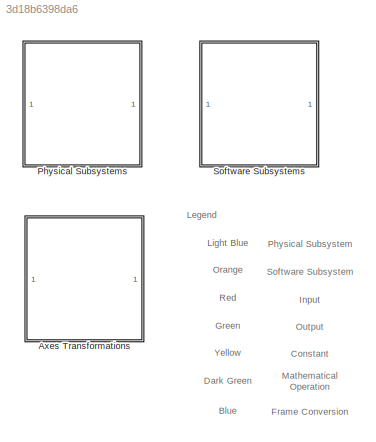
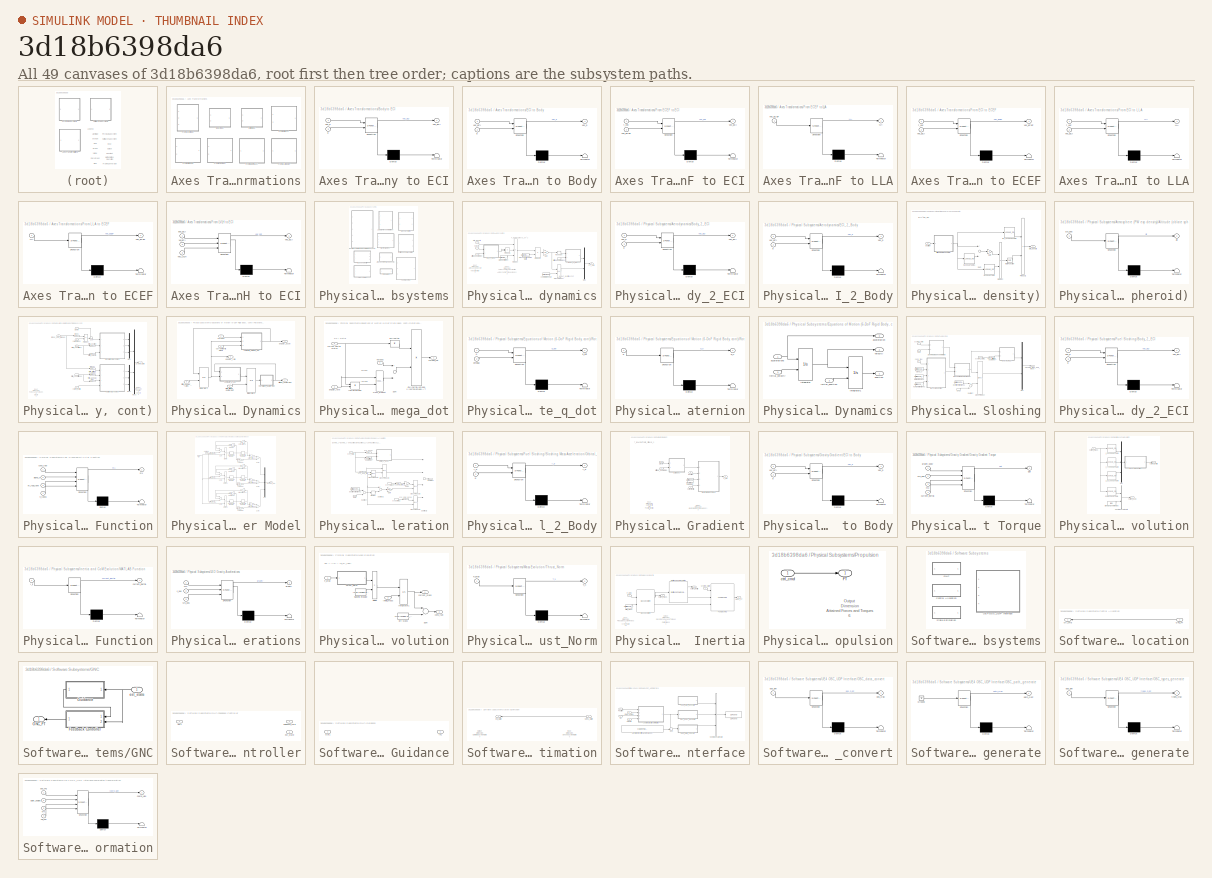
[diagram: thumbnail index - all 49 canvases of the model, root first then tree order]
MODEL slx_3d18b6398da6
KIND library
CONFIG AbsTol = auto
CONFIG FixedStep = auto
CONFIG MaxStep = auto
CONFIG MinStep = auto
CONFIG RelTol = 1e-3
CONFIG SampleTimeConstraint = Unconstrained
CONFIG Solver = ode45
CONFIG SolverMode = Auto
CONFIG SolverName = ode45
CONFIG StartTime = 0.0
CONFIG StopTime = 10.0
BLOCK [SubSystem] Axes Transformations
  Ports = []
  RequestExecContextInheritance = off
  Variant = off
BLOCK [SubSystem] Axes Transformations/Body to ECI
  ErrorFcn = Stateflow.Translate.translate
  PermitHierarchicalResolution = ExplicitOnly
  Ports = [2, 1]
  RequestExecContextInheritance = off
  SFBlockType = MATLAB Function
  TreatAsAtomicUnit = on
  Variant = off
BLOCK [Demux] Axes Transformations/Body to ECI/ Demux 
  Outputs = 1
  Ports = [1, 1]
BLOCK [S-Function] Axes Transformations/Body to ECI/ SFunction 
  EnableBusSupport = off
  FunctionName = sf_sfun
  PortCounts = [2 2]
  Ports = [2, 2]
  SFunctionDeploymentMode = off
  Tag = Stateflow S-Function GUARD_Toolbox 26
BLOCK [Terminator] Axes Transformations/Body to ECI/ Terminator 
BLOCK [Inport] Axes Transformations/Body to ECI/q
  IconDisplay = Port number
  Port = 2
BLOCK [Outport] Axes Transformations/Body to ECI/vec_ECI
  IconDisplay = Port number
BLOCK [Inport] Axes Transformations/Body to ECI/vec_b
  IconDisplay = Port number
BLOCK [SubSystem] Axes Transformations/ECI to Body
  ErrorFcn = Stateflow.Translate.translate
  PermitHierarchicalResolution = ExplicitOnly
  Ports = [2, 1]
  RequestExecContextInheritance = off
  SFBlockType = MATLAB Function
  TreatAsAtomicUnit = on
  Variant = off
BLOCK [Demux] Axes Transformations/ECI to Body/ Demux 
  Outputs = 1
  Ports = [1, 1]
BLOCK [S-Function] Axes Transformations/ECI to Body/ SFunction 
  EnableBusSupport = off
  FunctionName = sf_sfun
  PortCounts = [2 2]
  Ports = [2, 2]
  SFunctionDeploymentMode = off
  Tag = Stateflow S-Function GUARD_Toolbox 27
BLOCK [Terminator] Axes Transformations/ECI to Body/ Terminator 
BLOCK [Inport] Axes Transformations/ECI to Body/q
  IconDisplay = Port number
  Port = 2
BLOCK [Inport] Axes Transformations/ECI to Body/vec_ECI
  IconDisplay = Port number
BLOCK [Outport] Axes Transformations/ECI to Body/vec_b
  IconDisplay = Port number
BLOCK [SubSystem] Axes Transformations/From ECEF to ECI
  ErrorFcn = Stateflow.Translate.translate
  PermitHierarchicalResolution = ExplicitOnly
  Ports = [2, 1]
  RequestExecContextInheritance = off
  SFBlockType = MATLAB Function
  TreatAsAtomicUnit = on
  Variant = off
BLOCK [Demux] Axes Transformations/From ECEF to ECI/ Demux 
  Outputs = 1
  Ports = [1, 1]
BLOCK [S-Function] Axes Transformations/From ECEF to ECI/ SFunction 
  EnableBusSupport = off
  FunctionName = sf_sfun
  PortCounts = [2 2]
  Ports = [2, 2]
  SFunctionDeploymentMode = off
  Tag = Stateflow S-Function GUARD_Toolbox 28
BLOCK [Terminator] Axes Transformations/From ECEF to ECI/ Terminator 
BLOCK [Inport] Axes Transformations/From ECEF to ECI/t_vec
  IconDisplay = Port number
BLOCK [Inport] Axes Transformations/From ECEF to ECI/vec_ECEF
  IconDisplay = Port number
  Port = 2
BLOCK [Outport] Axes Transformations/From ECEF to ECI/vec_ECI
  IconDisplay = Port number
BLOCK [SubSystem] Axes Transformations/From ECEF to LLA
  ErrorFcn = Stateflow.Translate.translate
  PermitHierarchicalResolution = ExplicitOnly
  Ports = [1, 1]
  RequestExecContextInheritance = off
  SFBlockType = MATLAB Function
  TreatAsAtomicUnit = on
  Variant = off
BLOCK [Demux] Axes Transformations/From ECEF to LLA/ Demux 
  Outputs = 1
  Ports = [1, 1]
BLOCK [S-Function] Axes Transformations/From ECEF to LLA/ SFunction 
  EnableBusSupport = off
  FunctionName = sf_sfun
  PortCounts = [1 2]
  Ports = [1, 2]
  SFunctionDeploymentMode = off
  Tag = Stateflow S-Function GUARD_Toolbox 29
BLOCK [Terminator] Axes Transformations/From ECEF to LLA/ Terminator 
BLOCK [Outport] Axes Transformations/From ECEF to LLA/LLA
  IconDisplay = Port number
BLOCK [Inport] Axes Transformations/From ECEF to LLA/vec_ECEF
  IconDisplay = Port number
BLOCK [SubSystem] Axes Transformations/From ECI to ECEF
  ErrorFcn = Stateflow.Translate.translate
  PermitHierarchicalResolution = ExplicitOnly
  Ports = [2, 1]
  RequestExecContextInheritance = off
  SFBlockType = MATLAB Function
  TreatAsAtomicUnit = on
  Variant = off
BLOCK [Demux] Axes Transformations/From ECI to ECEF/ Demux 
  Outputs = 1
  Ports = [1, 1]
BLOCK [S-Function] Axes Transformations/From ECI to ECEF/ SFunction 
  EnableBusSupport = off
  FunctionName = sf_sfun
  PortCounts = [2 2]
  Ports = [2, 2]
  SFunctionDeploymentMode = off
  Tag = Stateflow S-Function GUARD_Toolbox 30
BLOCK [Terminator] Axes Transformations/From ECI to ECEF/ Terminator 
BLOCK [Inport] Axes Transformations/From ECI to ECEF/t_vec
  IconDisplay = Port number
BLOCK [Outport] Axes Transformations/From ECI to ECEF/vec_ECEF
  IconDisplay = Port number
BLOCK [Inport] Axes Transformations/From ECI to ECEF/vec_ECI
  IconDisplay = Port number
  Port = 2
BLOCK [SubSystem] Axes Transformations/From ECI to LLA
  ErrorFcn = Stateflow.Translate.translate
  PermitHierarchicalResolution = ExplicitOnly
  Ports = [2, 1]
  RequestExecContextInheritance = off
  SFBlockType = MATLAB Function
  TreatAsAtomicUnit = on
  Variant = off
BLOCK [Demux] Axes Transformations/From ECI to LLA/ Demux 
  Outputs = 1
  Ports = [1, 1]
BLOCK [S-Function] Axes Transformations/From ECI to LLA/ SFunction 
  EnableBusSupport = off
  FunctionName = sf_sfun
  PortCounts = [2 2]
  Ports = [2, 2]
  SFunctionDeploymentMode = off
  Tag = Stateflow S-Function GUARD_Toolbox 31
BLOCK [Terminator] Axes Transformations/From ECI to LLA/ Terminator 
BLOCK [Outport] Axes Transformations/From ECI to LLA/LLA
  IconDisplay = Port number
BLOCK [Inport] Axes Transformations/From ECI to LLA/t_vec
  IconDisplay = Port number
BLOCK [Inport] Axes Transformations/From ECI to LLA/vec_ECI
  IconDisplay = Port number
  Port = 2
BLOCK [SubSystem] Axes Transformations/From LLA to ECEF
  ErrorFcn = Stateflow.Translate.translate
  PermitHierarchicalResolution = ExplicitOnly
  Ports = [1, 1]
  RequestExecContextInheritance = off
  SFBlockType = MATLAB Function
  TreatAsAtomicUnit = on
  Variant = off
BLOCK [Demux] Axes Transformations/From LLA to ECEF/ Demux 
  Outputs = 1
  Ports = [1, 1]
BLOCK [S-Function] Axes Transformations/From LLA to ECEF/ SFunction 
  EnableBusSupport = off
  FunctionName = sf_sfun
  PortCounts = [1 2]
  Ports = [1, 2]
  SFunctionDeploymentMode = off
  Tag = Stateflow S-Function GUARD_Toolbox 32
BLOCK [Terminator] Axes Transformations/From LLA to ECEF/ Terminator 
BLOCK [Inport] Axes Transformations/From LLA to ECEF/LLA
  IconDisplay = Port number
BLOCK [Outport] Axes Transformations/From LLA to ECEF/vec_ECEF
  IconDisplay = Port number
BLOCK [SubSystem] Axes Transformations/From LVLH to ECI
  ErrorFcn = Stateflow.Translate.translate
  PermitHierarchicalResolution = ExplicitOnly
  Ports = [3, 1]
  RequestExecContextInheritance = off
  SFBlockType = MATLAB Function
  TreatAsAtomicUnit = on
  Variant = off
BLOCK [Demux] Axes Transformations/From LVLH to ECI/ Demux 
  Outputs = 1
  Ports = [1, 1]
BLOCK [S-Function] Axes Transformations/From LVLH to ECI/ SFunction 
  EnableBusSupport = off
  FunctionName = sf_sfun
  PortCounts = [3 2]
  Ports = [3, 2]
  SFunctionDeploymentMode = off
  Tag = Stateflow S-Function GUARD_Toolbox 33
BLOCK [Terminator] Axes Transformations/From LVLH to ECI/ Terminator 
BLOCK [Inport] Axes Transformations/From LVLH to ECI/pos_ECI
  IconDisplay = Port number
BLOCK [Outport] Axes Transformations/From LVLH to ECI/vec_ECI
  IconDisplay = Port number
BLOCK [Inport] Axes Transformations/From LVLH to ECI/vec_LVLH
  IconDisplay = Port number
  Port = 3
BLOCK [Inport] Axes Transformations/From LVLH to ECI/vel_ECI
  IconDisplay = Port number
  Port = 2
BLOCK [SubSystem] Physical Subsystems
  Ports = []
  RequestExecContextInheritance = off
  Variant = off
BLOCK [SubSystem] Physical Subsystems/Aerodynamics
  Ports = [3, 1]
  RequestExecContextInheritance = off
  Variant = off
BLOCK [SubSystem] Physical Subsystems/Aerodynamics/Body_2_ECI
  ErrorFcn = Stateflow.Translate.translate
  PermitHierarchicalResolution = ExplicitOnly
  Ports = [2, 1]
  RequestExecContextInheritance = off
  SFBlockType = MATLAB Function
  TreatAsAtomicUnit = on
  Variant = off
BLOCK [Demux] Physical Subsystems/Aerodynamics/Body_2_ECI/ Demux 
  Outputs = 1
  Ports = [1, 1]
BLOCK [S-Function] Physical Subsystems/Aerodynamics/Body_2_ECI/ SFunction 
  EnableBusSupport = off
  FunctionName = sf_sfun
  PortCounts = [2 2]
  Ports = [2, 2]
  SFunctionDeploymentMode = off
  Tag = Stateflow S-Function GUARD_Toolbox 5
BLOCK [Terminator] Physical Subsystems/Aerodynamics/Body_2_ECI/ Terminator 
BLOCK [Inport] Physical Subsystems/Aerodynamics/Body_2_ECI/q
  IconDisplay = Port number
  Port = 2
BLOCK [Outport] Physical Subsystems/Aerodynamics/Body_2_ECI/vec_ECI
  IconDisplay = Port number
BLOCK [Inport] Physical Subsystems/Aerodynamics/Body_2_ECI/vec_b
  IconDisplay = Port number
BLOCK [Reference] Physical Subsystems/Aerodynamics/Cross Product  REF=vrlib/Utilities/Cross Product
  Ports = [2, 1]
  SourceBlock = vrlib/Utilities/Cross Product
  SourceType = Cross Product
BLOCK [Constant] Physical Subsystems/Aerodynamics/Cross sectional Area Matrix
  Value = UW.iAero.A_drag
BLOCK [Constant] Physical Subsystems/Aerodynamics/Drag Coefficient
  Value = UW.iAero.C_drag
BLOCK [SubSystem] Physical Subsystems/Aerodynamics/ECI_2_Body
  ErrorFcn = Stateflow.Translate.translate
  PermitHierarchicalResolution = ExplicitOnly
  Ports = [2, 1]
  RequestExecContextInheritance = off
  SFBlockType = MATLAB Function
  TreatAsAtomicUnit = on
  Variant = off
BLOCK [Demux] Physical Subsystems/Aerodynamics/ECI_2_Body/ Demux 
  Outputs = 1
  Ports = [1, 1]
BLOCK [S-Function] Physical Subsystems/Aerodynamics/ECI_2_Body/ SFunction 
  EnableBusSupport = off
  FunctionName = sf_sfun
  PortCounts = [2 2]
  Ports = [2, 2]
  SFunctionDeploymentMode = off
  Tag = Stateflow S-Function GUARD_Toolbox 6
BLOCK [Terminator] Physical Subsystems/Aerodynamics/ECI_2_Body/ Terminator 
BLOCK [Inport] Physical Subsystems/Aerodynamics/ECI_2_Body/q
  IconDisplay = Port number
  Port = 2
BLOCK [Inport] Physical Subsystems/Aerodynamics/ECI_2_Body/vec_ECI
  IconDisplay = Port number
BLOCK [Outport] Physical Subsystems/Aerodynamics/ECI_2_Body/vec_b
  IconDisplay = Port number
BLOCK [Outport] Physical Subsystems/Aerodynamics/FT_Aero
  IconDisplay = Port number
BLOCK [Gain] Physical Subsystems/Aerodynamics/Gain
  Gain = -1/2
  OutDataTypeStr = Inherit: Inherit via internal rule
  ParamDataTypeStr = Inherit: Inherit via internal rule
  SaturateOnIntegerOverflow = off
BLOCK [Mux] Physical Subsystems/Aerodynamics/Mux
  DisplayOption = bar
  Inputs = [3 3]
  Ports = [2, 1]
BLOCK [Product] Physical Subsystems/Aerodynamics/Product
  Inputs = ***
  Ports = [3, 1]
BLOCK [Product] Physical Subsystems/Aerodynamics/Product1
  Inputs = **
  Ports = [2, 1]
BLOCK [Product] Physical Subsystems/Aerodynamics/Product2
  Inputs = **
  Multiplication = Matrix(*)
  Ports = [2, 1]
BLOCK [Reshape] Physical Subsystems/Aerodynamics/Reshape
  OutputDimensionality = Column vector (2-D)
  Ports = [1, 1]
BLOCK [Inport] Physical Subsystems/Aerodynamics/atm_density
  IconDisplay = Port number
BLOCK [Inport] Physical Subsystems/Aerodynamics/attitude quaternion
  IconDisplay = Port number
  Port = 3
BLOCK [InportShadow] Physical Subsystems/Aerodynamics/attitude quaternion1
  IconDisplay = Port number
  Port = 3
BLOCK [Constant] Physical Subsystems/Aerodynamics/center of pressure
  Value = UW.iAero.CoP
BLOCK [Inport] Physical Subsystems/Aerodynamics/velocity
  IconDisplay = Port number
  Port = 2
BLOCK [SubSystem] Physical Subsystems/Atmosphere (PW exp density)
  Ports = [1, 1]
  RequestExecContextInheritance = off
  Variant = off
BLOCK [SubSystem] Physical Subsystems/Atmosphere (PW exp density)/Altitude (oblate spheroid)
  ErrorFcn = Stateflow.Translate.translate
  PermitHierarchicalResolution = ExplicitOnly
  Ports = [1, 1]
  RequestExecContextInheritance = off
  SFBlockType = MATLAB Function
  TreatAsAtomicUnit = on
  Variant = off
BLOCK [Demux] Physical Subsystems/Atmosphere (PW exp density)/Altitude (oblate spheroid)/ Demux 
  Outputs = 1
  Ports = [1, 1]
BLOCK [S-Function] Physical Subsystems/Atmosphere (PW exp density)/Altitude (oblate spheroid)/ SFunction 
  EnableBusSupport = off
  FunctionName = sf_sfun
  PortCounts = [1 2]
  Ports = [1, 2]
  SFunctionDeploymentMode = off
  Tag = Stateflow S-Function GUARD_Toolbox 7
BLOCK [Terminator] Physical Subsystems/Atmosphere (PW exp density)/Altitude (oblate spheroid)/ Terminator 
BLOCK [Outport] Physical Subsystems/Atmosphere (PW exp density)/Altitude (oblate spheroid)/alt
  IconDisplay = Port number
BLOCK [Inport] Physical Subsystems/Atmosphere (PW exp density)/Altitude (oblate spheroid)/sys_pos
  IconDisplay = Port number
BLOCK [Gain] Physical Subsystems/Atmosphere (PW exp density)/Gain
  Gain = -1
  OutDataTypeStr = Inherit: Inherit via internal rule
  ParamDataTypeStr = Inherit: Inherit via internal rule
  SaturateOnIntegerOverflow = off
BLOCK [Lookup_n-D] Physical Subsystems/Atmosphere (PW exp density)/H Lookup Table
  BreakpointsForDimension1 = UW.iPWatm.h_idx
  InternalRulePriority = Speed
  NumberOfTableDimensions = 1
  Ports = [1, 1]
  RndMeth = Simplest
  Table = UW.iPWatm.H
BLOCK [Lookup_n-D] Physical Subsystems/Atmosphere (PW exp density)/H Lookup Table1
  BreakpointsForDimension1 = UW.iPWatm.h_idx
  InternalRulePriority = Speed
  NumberOfTableDimensions = 1
  Ports = [1, 1]
  RndMeth = Simplest
  Table = UW.iPWatm.h_idx
BLOCK [Math] Physical Subsystems/Atmosphere (PW exp density)/Math Function
  Ports = [1, 1]
BLOCK [Product] Physical Subsystems/Atmosphere (PW exp density)/Product
  Inputs = */
  Ports = [2, 1]
BLOCK [Product] Physical Subsystems/Atmosphere (PW exp density)/Product1
  Inputs = **
  Ports = [2, 1]
BLOCK [Sum] Physical Subsystems/Atmosphere (PW exp density)/Sum
  InputSameDT = off
  Inputs = +-
  OutDataTypeStr = Inherit: Inherit via internal rule
  Ports = [2, 1]
  SaturateOnIntegerOverflow = off
BLOCK [Outport] Physical Subsystems/Atmosphere (PW exp density)/atm_density
  IconDisplay = Port number
BLOCK [Inport] Physical Subsystems/Atmosphere (PW exp density)/position
  IconDisplay = Port number
BLOCK [Lookup_n-D] Physical Subsystems/Atmosphere (PW exp density)/rho_0 Lookup Table
  BreakpointsForDimension1 = UW.iPWatm.h_idx
  InternalRulePriority = Speed
  NumberOfTableDimensions = 1
  Ports = [1, 1]
  RndMeth = Simplest
  Table = UW.iPWatm.rho_0
BLOCK [SubSystem] Physical Subsystems/Equations of Motion (6-DoF Rigid Body, cont)
  Ports = [5, 1]
  RequestExecContextInheritance = off
  Variant = off
BLOCK [Mux] Physical Subsystems/Equations of Motion (6-DoF Rigid Body, cont)/Mux
  DisplayOption = bar
  Inputs = [3 3 3]
  Ports = [3, 1]
BLOCK [Mux] Physical Subsystems/Equations of Motion (6-DoF Rigid Body, cont)/Mux1
  DisplayOption = bar
  Inputs = [4 3 3]
  Ports = [3, 1]
BLOCK [Mux] Physical Subsystems/Equations of Motion (6-DoF Rigid Body, cont)/Mux2
  DisplayOption = bar
  Inputs = [9 10]
  Ports = [2, 1]
BLOCK [Product] Physical Subsystems/Equations of Motion (6-DoF Rigid Body, cont)/Product
  Inputs = */
  Ports = [2, 1]
BLOCK [SubSystem] Physical Subsystems/Equations of Motion (6-DoF Rigid Body, cont)/Rotational Dynamics
  Ports = [4, 3]
  RequestExecContextInheritance = off
  Variant = off
BLOCK [Integrator] Physical Subsystems/Equations of Motion (6-DoF Rigid Body, cont)/Rotational Dynamics/Integrator1
  InitialConditionSource = external
  Ports = [2, 1]
BLOCK [Integrator] Physical Subsystems/Equations of Motion (6-DoF Rigid Body, cont)/Rotational Dynamics/Integrator2
  InitialConditionSource = external
  Ports = [2, 1]
BLOCK [Inport] Physical Subsystems/Equations of Motion (6-DoF Rigid Body, cont)/Rotational Dynamics/Torques
  IconDisplay = Port number
BLOCK [Outport] Physical Subsystems/Equations of Motion (6-DoF Rigid Body, cont)/Rotational Dynamics/angular_accel
  IconDisplay = Port number
  Port = 3
BLOCK [Outport] Physical Subsystems/Equations of Motion (6-DoF Rigid Body, cont)/Rotational Dynamics/angular_rate
  IconDisplay = Port number
  Port = 2
BLOCK [Outport] Physical Subsystems/Equations of Motion (6-DoF Rigid Body, cont)/Rotational Dynamics/attitude_quaternion
  IconDisplay = Port number
BLOCK [SubSystem] Physical Subsystems/Equations of Motion (6-DoF Rigid Body, cont)/Rotational Dynamics/compute_omega_dot
  Ports = [3, 1]
  RequestExecContextInheritance = off
  Variant = off
BLOCK [Product] Physical Subsystems/Equations of Motion (6-DoF Rigid Body, cont)/Rotational Dynamics/compute_omega_dot/-inv(Inertia)*omega x Inertia*omega + T
  Multiplication = Matrix(*)
  Ports = [2, 1]
BLOCK [Product] Physical Subsystems/Equations of Motion (6-DoF Rigid Body, cont)/Rotational Dynamics/compute_omega_dot/Inertia*omega
  Multiplication = Matrix(*)
  Ports = [2, 1]
BLOCK [Sum] Physical Subsystems/Equations of Motion (6-DoF Rigid Body, cont)/Rotational Dynamics/compute_omega_dot/Sum
  InputSameDT = off
  Inputs = +-
  OutDataTypeStr = Inherit: Inherit via internal rule
  Ports = [2, 1]
  SaturateOnIntegerOverflow = off
BLOCK [Inport] Physical Subsystems/Equations of Motion (6-DoF Rigid Body, cont)/Rotational Dynamics/compute_omega_dot/Torques
  IconDisplay = Port number
BLOCK [Inport] Physical Subsystems/Equations of Motion (6-DoF Rigid Body, cont)/Rotational Dynamics/compute_omega_dot/angular_rate
  IconDisplay = Port number
  Port = 2
BLOCK [Reference] Physical Subsystems/Equations of Motion (6-DoF Rigid Body, cont)/Rotational Dynamics/compute_omega_dot/cross_product  REF=vrlib/Utilities/Cross Product
  Ports = [2, 1]
  SourceBlock = vrlib/Utilities/Cross Product
  SourceType = Cross Product
BLOCK [Inport] Physical Subsystems/Equations of Motion (6-DoF Rigid Body, cont)/Rotational Dynamics/compute_omega_dot/current inertia matrix
  IconDisplay = Port number
  Port = 3
BLOCK [Product] Physical Subsystems/Equations of Motion (6-DoF Rigid Body, cont)/Rotational Dynamics/compute_omega_dot/inv(Inertia)
  Inputs = /
  Multiplication = Matrix(*)
  Ports = [1, 1]
BLOCK [Outport] Physical Subsystems/Equations of Motion (6-DoF Rigid Body, cont)/Rotational Dynamics/compute_omega_dot/omega_dot
  IconDisplay = Port number
BLOCK [SubSystem] Physical Subsystems/Equations of Motion (6-DoF Rigid Body, cont)/Rotational Dynamics/compute_q_dot
  ErrorFcn = Stateflow.Translate.translate
  PermitHierarchicalResolution = ExplicitOnly
  Ports = [2, 1]
  RequestExecContextInheritance = off
  SFBlockType = MATLAB Function
  TreatAsAtomicUnit = on
  Variant = off
BLOCK [Demux] Physical Subsystems/Equations of Motion (6-DoF Rigid Body, cont)/Rotational Dynamics/compute_q_dot/ Demux 
  Outputs = 1
  Ports = [1, 1]
BLOCK [S-Function] Physical Subsystems/Equations of Motion (6-DoF Rigid Body, cont)/Rotational Dynamics/compute_q_dot/ SFunction 
  EnableBusSupport = off
  FunctionName = sf_sfun
  PortCounts = [2 2]
  Ports = [2, 2]
  SFunctionDeploymentMode = off
  Tag = Stateflow S-Function GUARD_Toolbox 8
BLOCK [Terminator] Physical Subsystems/Equations of Motion (6-DoF Rigid Body, cont)/Rotational Dynamics/compute_q_dot/ Terminator 
BLOCK [Inport] Physical Subsystems/Equations of Motion (6-DoF Rigid Body, cont)/Rotational Dynamics/compute_q_dot/omega
  IconDisplay = Port number
  Port = 2
BLOCK [Inport] Physical Subsystems/Equations of Motion (6-DoF Rigid Body, cont)/Rotational Dynamics/compute_q_dot/q
  IconDisplay = Port number
BLOCK [Outport] Physical Subsystems/Equations of Motion (6-DoF Rigid Body, cont)/Rotational Dynamics/compute_q_dot/q_dot
  IconDisplay = Port number
BLOCK [Inport] Physical Subsystems/Equations of Motion (6-DoF Rigid Body, cont)/Rotational Dynamics/current inertia matrix
  IconDisplay = Port number
  Port = 4
BLOCK [Inport] Physical Subsystems/Equations of Motion (6-DoF Rigid Body, cont)/Rotational Dynamics/initial_angular_rates
  IconDisplay = Port number
  Port = 3
BLOCK [Inport] Physical Subsystems/Equations of Motion (6-DoF Rigid Body, cont)/Rotational Dynamics/initial_attitude_quaternion
  IconDisplay = Port number
  Port = 2
BLOCK [SubSystem] Physical Subsystems/Equations of Motion (6-DoF Rigid Body, cont)/Rotational Dynamics/normalize_quaternion
  ErrorFcn = Stateflow.Translate.translate
  PermitHierarchicalResolution = ExplicitOnly
  Ports = [1, 1]
  RequestExecContextInheritance = off
  SFBlockType = MATLAB Function
  TreatAsAtomicUnit = on
  Variant = off
BLOCK [Demux] Physical Subsystems/Equations of Motion (6-DoF Rigid Body, cont)/Rotational Dynamics/normalize_quaternion/ Demux 
  Outputs = 1
  Ports = [1, 1]
BLOCK [S-Function] Physical Subsystems/Equations of Motion (6-DoF Rigid Body, cont)/Rotational Dynamics/normalize_quaternion/ SFunction 
  EnableBusSupport = off
  FunctionName = sf_sfun
  PortCounts = [1 2]
  Ports = [1, 2]
  SFunctionDeploymentMode = off
  Tag = Stateflow S-Function GUARD_Toolbox 12
BLOCK [Terminator] Physical Subsystems/Equations of Motion (6-DoF Rigid Body, cont)/Rotational Dynamics/normalize_quaternion/ Terminator 
BLOCK [Inport] Physical Subsystems/Equations of Motion (6-DoF Rigid Body, cont)/Rotational Dynamics/normalize_quaternion/q
  IconDisplay = Port number
BLOCK [Outport] Physical Subsystems/Equations of Motion (6-DoF Rigid Body, cont)/Rotational Dynamics/normalize_quaternion/q_n
  IconDisplay = Port number
BLOCK [Sum] Physical Subsystems/Equations of Motion (6-DoF Rigid Body, cont)/Sum
  IconShape = round
  InputSameDT = off
  Inputs = ++|
  OutDataTypeStr = Inherit: Inherit via internal rule
  Ports = [2, 1]
  SaturateOnIntegerOverflow = off
BLOCK [Outport] Physical Subsystems/Equations of Motion (6-DoF Rigid Body, cont)/System_State
  IconDisplay = Port number
BLOCK [SubSystem] Physical Subsystems/Equations of Motion (6-DoF Rigid Body, cont)/Translational Dynamics
  Ports = [3, 3]
  RequestExecContextInheritance = off
  Variant = off
BLOCK [Integrator] Physical Subsystems/Equations of Motion (6-DoF Rigid Body, cont)/Translational Dynamics/Integrator
  InitialConditionSource = external
  Ports = [2, 1]
BLOCK [Integrator] Physical Subsystems/Equations of Motion (6-DoF Rigid Body, cont)/Translational Dynamics/Integrator1
  InitialConditionSource = external
  Ports = [2, 1]
BLOCK [Outport] Physical Subsystems/Equations of Motion (6-DoF Rigid Body, cont)/Translational Dynamics/acceleration
  IconDisplay = Port number
  Port = 3
BLOCK [Inport] Physical Subsystems/Equations of Motion (6-DoF Rigid Body, cont)/Translational Dynamics/accelerations
  IconDisplay = Port number
BLOCK [Inport] Physical Subsystems/Equations of Motion (6-DoF Rigid Body, cont)/Translational Dynamics/initial_position
  IconDisplay = Port number
  Port = 2
BLOCK [Inport] Physical Subsystems/Equations of Motion (6-DoF Rigid Body, cont)/Translational Dynamics/initial_velocity
  IconDisplay = Port number
  Port = 3
BLOCK [Outport] Physical Subsystems/Equations of Motion (6-DoF Rigid Body, cont)/Translational Dynamics/position
  IconDisplay = Port number
BLOCK [Outport] Physical Subsystems/Equations of Motion (6-DoF Rigid Body, cont)/Translational Dynamics/velocity
  IconDisplay = Port number
  Port = 2
BLOCK [Inport] Physical Subsystems/Equations of Motion (6-DoF Rigid Body, cont)/current mass
  IconDisplay = Port number
  Port = 3
  PortDimensions = 1
BLOCK [Inport] Physical Subsystems/Equations of Motion (6-DoF Rigid Body, cont)/current_inertia
  IconDisplay = Port number
  Port = 4
BLOCK [Selector] Physical Subsystems/Equations of Motion (6-DoF Rigid Body, cont)/forces
  IndexOptions = Index vector (dialog)
  Indices = [1 2 3]
  InputPortWidth = 6
  OutputSizes = 1
  Ports = [1, 1]
BLOCK [Inport] Physical Subsystems/Equations of Motion (6-DoF Rigid Body, cont)/forces_and_torques
  IconDisplay = Port number
BLOCK [Inport] Physical Subsystems/Equations of Motion (6-DoF Rigid Body, cont)/gravity
  IconDisplay = Port number
  Port = 2
BLOCK [Selector] Physical Subsystems/Equations of Motion (6-DoF Rigid Body, cont)/initial_angular_rates
  IndexOptions = Index vector (dialog)
  Indices = [11 12 13]
  InputPortWidth = 13
  OutputSizes = 1
  Ports = [1, 1]
BLOCK [Selector] Physical Subsystems/Equations of Motion (6-DoF Rigid Body, cont)/initial_attitude quaternion
  IndexOptions = Index vector (dialog)
  Indices = [7 8 9 10]
  InputPortWidth = 13
  OutputSizes = 1
  Ports = [1, 1]
BLOCK [Inport] Physical Subsystems/Equations of Motion (6-DoF Rigid Body, cont)/initial_condirtions
  IconDisplay = Port number
  Port = 5
BLOCK [InportShadow] Physical Subsystems/Equations of Motion (6-DoF Rigid Body, cont)/initial_condirtions1
  IconDisplay = Port number
  Port = 5
BLOCK [Selector] Physical Subsystems/Equations of Motion (6-DoF Rigid Body, cont)/initial_position
  IndexOptions = Index vector (dialog)
  Indices = [1 2 3]
  InputPortWidth = 13
  OutputSizes = 1
  Ports = [1, 1]
BLOCK [Selector] Physical Subsystems/Equations of Motion (6-DoF Rigid Body, cont)/initial_velocity
  IndexOptions = Index vector (dialog)
  Indices = [4 5 6]
  InputPortWidth = 13
  OutputSizes = 1
  Ports = [1, 1]
BLOCK [Selector] Physical Subsystems/Equations of Motion (6-DoF Rigid Body, cont)/torques
  IndexOptions = Index vector (dialog)
  Indices = [4 5 6]
  InputPortWidth = 6
  OutputSizes = 1
  Ports = [1, 1]
BLOCK [SubSystem] Physical Subsystems/Fuel Sloshing
  Ports = [3, 1]
  RequestExecContextInheritance = off
  Variant = off
BLOCK [SubSystem] Physical Subsystems/Fuel Sloshing/Body_2_ECI
  ErrorFcn = Stateflow.Translate.translate
  PermitHierarchicalResolution = ExplicitOnly
  Ports = [2, 1]
  RequestExecContextInheritance = off
  SFBlockType = MATLAB Function
  TreatAsAtomicUnit = on
  Variant = off
BLOCK [Demux] Physical Subsystems/Fuel Sloshing/Body_2_ECI/ Demux 
  Outputs = 1
  Ports = [1, 1]
BLOCK [S-Function] Physical Subsystems/Fuel Sloshing/Body_2_ECI/ SFunction 
  EnableBusSupport = off
  FunctionName = sf_sfun
  PortCounts = [2 2]
  Ports = [2, 2]
  SFunctionDeploymentMode = off
  Tag = Stateflow S-Function GUARD_Toolbox 17
BLOCK [Terminator] Physical Subsystems/Fuel Sloshing/Body_2_ECI/ Terminator 
BLOCK [Inport] Physical Subsystems/Fuel Sloshing/Body_2_ECI/q
  IconDisplay = Port number
  Port = 2
BLOCK [Outport] Physical Subsystems/Fuel Sloshing/Body_2_ECI/vec_ECI
  IconDisplay = Port number
BLOCK [Inport] Physical Subsystems/Fuel Sloshing/Body_2_ECI/vec_b
  IconDisplay = Port number
BLOCK [Inport] Physical Subsystems/Fuel Sloshing/CoG
  IconDisplay = Port number
  Port = 2
BLOCK [InportShadow] Physical Subsystems/Fuel Sloshing/CoG1
  IconDisplay = Port number
  Port = 2
BLOCK [Reference] Physical Subsystems/Fuel Sloshing/Cross Product  REF=vrlib/Utilities/Cross Product
  Ports = [2, 1]
  SourceBlock = vrlib/Utilities/Cross Product
  SourceType = Cross Product
BLOCK [SubSystem] Physical Subsystems/Fuel Sloshing/MATLAB Function
  ErrorFcn = Stateflow.Translate.translate
  PermitHierarchicalResolution = ExplicitOnly
  Ports = [4, 1]
  RequestExecContextInheritance = off
  SFBlockType = MATLAB Function
  TreatAsAtomicUnit = on
  Variant = off
BLOCK [Demux] Physical Subsystems/Fuel Sloshing/MATLAB Function/ Demux 
  Outputs = 1
  Ports = [1, 1]
BLOCK [S-Function] Physical Subsystems/Fuel Sloshing/MATLAB Function/ SFunction 
  EnableBusSupport = off
  FunctionName = sf_sfun
  PortCounts = [4 2]
  Ports = [4, 2]
  SFunctionDeploymentMode = off
  Tag = Stateflow S-Function GUARD_Toolbox 21
BLOCK [Terminator] Physical Subsystems/Fuel Sloshing/MATLAB Function/ Terminator 
BLOCK [Inport] Physical Subsystems/Fuel Sloshing/MATLAB Function/alpha_s
  IconDisplay = Port number
  Port = 2
BLOCK [Inport] Physical Subsystems/Fuel Sloshing/MATLAB Function/cons_fuel
  IconDisplay = Port number
BLOCK [Outport] Physical Subsystems/Fuel Sloshing/MATLAB Function/m1
  IconDisplay = Port number
BLOCK [Inport] Physical Subsystems/Fuel Sloshing/MATLAB Function/m_fuel_tank
  IconDisplay = Port number
  Port = 3
BLOCK [Inport] Physical Subsystems/Fuel Sloshing/MATLAB Function/n_tanks
  IconDisplay = Port number
  Port = 4
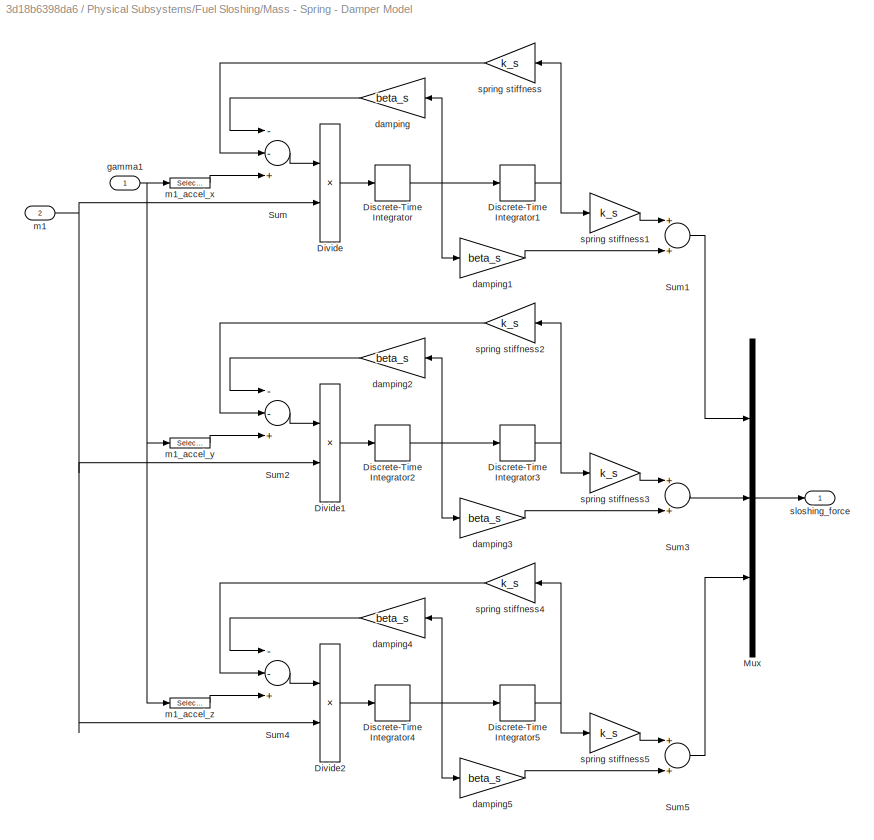
BLOCK [SubSystem] Physical Subsystems/Fuel Sloshing/Mass - Spring - Damper Model
  Ports = [2, 1]
  RequestExecContextInheritance = off
  Variant = off
BLOCK [DiscreteIntegrator] Physical Subsystems/Fuel Sloshing/Mass - Spring - Damper Model/Discrete-Time Integrator
  ICPrevOutput = DiscIntNeverNeededParam
  ICPrevScaledInput = DiscIntNeverNeededParam
  InitialConditionSetting = State (most efficient)
  Ports = [1, 1]
  SampleTime = Ts
BLOCK [DiscreteIntegrator] Physical Subsystems/Fuel Sloshing/Mass - Spring - Damper Model/Discrete-Time Integrator1
  ICPrevOutput = DiscIntNeverNeededParam
  ICPrevScaledInput = DiscIntNeverNeededParam
  InitialConditionSetting = State (most efficient)
  Ports = [1, 1]
  SampleTime = Ts
BLOCK [DiscreteIntegrator] Physical Subsystems/Fuel Sloshing/Mass - Spring - Damper Model/Discrete-Time Integrator2
  ICPrevOutput = DiscIntNeverNeededParam
  ICPrevScaledInput = DiscIntNeverNeededParam
  InitialConditionSetting = State (most efficient)
  Ports = [1, 1]
  SampleTime = Ts
BLOCK [DiscreteIntegrator] Physical Subsystems/Fuel Sloshing/Mass - Spring - Damper Model/Discrete-Time Integrator3
  ICPrevOutput = DiscIntNeverNeededParam
  ICPrevScaledInput = DiscIntNeverNeededParam
  InitialConditionSetting = State (most efficient)
  Ports = [1, 1]
  SampleTime = Ts
BLOCK [DiscreteIntegrator] Physical Subsystems/Fuel Sloshing/Mass - Spring - Damper Model/Discrete-Time Integrator4
  ICPrevOutput = DiscIntNeverNeededParam
  ICPrevScaledInput = DiscIntNeverNeededParam
  InitialConditionSetting = State (most efficient)
  Ports = [1, 1]
  SampleTime = Ts
BLOCK [DiscreteIntegrator] Physical Subsystems/Fuel Sloshing/Mass - Spring - Damper Model/Discrete-Time Integrator5
  ICPrevOutput = DiscIntNeverNeededParam
  ICPrevScaledInput = DiscIntNeverNeededParam
  InitialConditionSetting = State (most efficient)
  Ports = [1, 1]
  SampleTime = Ts
BLOCK [Product] Physical Subsystems/Fuel Sloshing/Mass - Spring - Damper Model/Divide
  InputSameDT = off
  Inputs = */
  OutDataTypeStr = Inherit: Inherit via internal rule
  Ports = [2, 1]
  RndMeth = Floor
  SaturateOnIntegerOverflow = off
BLOCK [Product] Physical Subsystems/Fuel Sloshing/Mass - Spring - Damper Model/Divide1
  InputSameDT = off
  Inputs = */
  OutDataTypeStr = Inherit: Inherit via internal rule
  Ports = [2, 1]
  RndMeth = Floor
  SaturateOnIntegerOverflow = off
BLOCK [Product] Physical Subsystems/Fuel Sloshing/Mass - Spring - Damper Model/Divide2
  InputSameDT = off
  Inputs = */
  OutDataTypeStr = Inherit: Inherit via internal rule
  Ports = [2, 1]
  RndMeth = Floor
  SaturateOnIntegerOverflow = off
BLOCK [Mux] Physical Subsystems/Fuel Sloshing/Mass - Spring - Damper Model/Mux
  DisplayOption = bar
  Inputs = 3
  Ports = [3, 1]
BLOCK [Sum] Physical Subsystems/Fuel Sloshing/Mass - Spring - Damper Model/Sum
  InputSameDT = off
  Inputs = --+
  OutDataTypeStr = Inherit: Inherit via internal rule
  Ports = [3, 1]
  SaturateOnIntegerOverflow = off
BLOCK [Sum] Physical Subsystems/Fuel Sloshing/Mass - Spring - Damper Model/Sum1
  InputSameDT = off
  OutDataTypeStr = Inherit: Inherit via internal rule
  Ports = [2, 1]
  SaturateOnIntegerOverflow = off
BLOCK [Sum] Physical Subsystems/Fuel Sloshing/Mass - Spring - Damper Model/Sum2
  InputSameDT = off
  Inputs = --+
  OutDataTypeStr = Inherit: Inherit via internal rule
  Ports = [3, 1]
  SaturateOnIntegerOverflow = off
BLOCK [Sum] Physical Subsystems/Fuel Sloshing/Mass - Spring - Damper Model/Sum3
  InputSameDT = off
  OutDataTypeStr = Inherit: Inherit via internal rule
  Ports = [2, 1]
  SaturateOnIntegerOverflow = off
BLOCK [Sum] Physical Subsystems/Fuel Sloshing/Mass - Spring - Damper Model/Sum4
  InputSameDT = off
  Inputs = --+
  OutDataTypeStr = Inherit: Inherit via internal rule
  Ports = [3, 1]
  SaturateOnIntegerOverflow = off
BLOCK [Sum] Physical Subsystems/Fuel Sloshing/Mass - Spring - Damper Model/Sum5
  InputSameDT = off
  OutDataTypeStr = Inherit: Inherit via internal rule
  Ports = [2, 1]
  SaturateOnIntegerOverflow = off
BLOCK [Gain] Physical Subsystems/Fuel Sloshing/Mass - Spring - Damper Model/damping
  Gain = beta_s
  OutDataTypeStr = Inherit: Inherit via internal rule
  ParamDataTypeStr = Inherit: Inherit via internal rule
  SaturateOnIntegerOverflow = off
BLOCK [Gain] Physical Subsystems/Fuel Sloshing/Mass - Spring - Damper Model/damping1
  Gain = beta_s
  OutDataTypeStr = Inherit: Inherit via internal rule
  ParamDataTypeStr = Inherit: Inherit via internal rule
  SaturateOnIntegerOverflow = off
BLOCK [Gain] Physical Subsystems/Fuel Sloshing/Mass - Spring - Damper Model/damping2
  Gain = beta_s
  OutDataTypeStr = Inherit: Inherit via internal rule
  ParamDataTypeStr = Inherit: Inherit via internal rule
  SaturateOnIntegerOverflow = off
BLOCK [Gain] Physical Subsystems/Fuel Sloshing/Mass - Spring - Damper Model/damping3
  Gain = beta_s
  OutDataTypeStr = Inherit: Inherit via internal rule
  ParamDataTypeStr = Inherit: Inherit via internal rule
  SaturateOnIntegerOverflow = off
BLOCK [Gain] Physical Subsystems/Fuel Sloshing/Mass - Spring - Damper Model/damping4
  Gain = beta_s
  OutDataTypeStr = Inherit: Inherit via internal rule
  ParamDataTypeStr = Inherit: Inherit via internal rule
  SaturateOnIntegerOverflow = off
BLOCK [Gain] Physical Subsystems/Fuel Sloshing/Mass - Spring - Damper Model/damping5
  Gain = beta_s
  OutDataTypeStr = Inherit: Inherit via internal rule
  ParamDataTypeStr = Inherit: Inherit via internal rule
  SaturateOnIntegerOverflow = off
BLOCK [Inport] Physical Subsystems/Fuel Sloshing/Mass - Spring - Damper Model/gamma1
  IconDisplay = Port number
BLOCK [Inport] Physical Subsystems/Fuel Sloshing/Mass - Spring - Damper Model/m1
  IconDisplay = Port number
  Port = 2
BLOCK [Selector] Physical Subsystems/Fuel Sloshing/Mass - Spring - Damper Model/m1_accel_x
  IndexOptions = Index vector (dialog)
  Indices = [1]
  InputPortWidth = 3
  OutputSizes = 1
  Ports = [1, 1]
BLOCK [Selector] Physical Subsystems/Fuel Sloshing/Mass - Spring - Damper Model/m1_accel_y
  IndexOptions = Index vector (dialog)
  Indices = [2]
  InputPortWidth = 3
  OutputSizes = 1
  Ports = [1, 1]
BLOCK [Selector] Physical Subsystems/Fuel Sloshing/Mass - Spring - Damper Model/m1_accel_z
  IndexOptions = Index vector (dialog)
  Indices = [3]
  InputPortWidth = 3
  OutputSizes = 1
  Ports = [1, 1]
BLOCK [Outport] Physical Subsystems/Fuel Sloshing/Mass - Spring - Damper Model/sloshing_force
  IconDisplay = Port number
BLOCK [Gain] Physical Subsystems/Fuel Sloshing/Mass - Spring - Damper Model/spring stiffness
  Gain = k_s
  OutDataTypeStr = Inherit: Inherit via internal rule
  ParamDataTypeStr = Inherit: Inherit via internal rule
  SaturateOnIntegerOverflow = off
BLOCK [Gain] Physical Subsystems/Fuel Sloshing/Mass - Spring - Damper Model/spring stiffness1
  Gain = k_s
  OutDataTypeStr = Inherit: Inherit via internal rule
  ParamDataTypeStr = Inherit: Inherit via internal rule
  SaturateOnIntegerOverflow = off
BLOCK [Gain] Physical Subsystems/Fuel Sloshing/Mass - Spring - Damper Model/spring stiffness2
  Gain = k_s
  OutDataTypeStr = Inherit: Inherit via internal rule
  ParamDataTypeStr = Inherit: Inherit via internal rule
  SaturateOnIntegerOverflow = off
BLOCK [Gain] Physical Subsystems/Fuel Sloshing/Mass - Spring - Damper Model/spring stiffness3
  Gain = k_s
  OutDataTypeStr = Inherit: Inherit via internal rule
  ParamDataTypeStr = Inherit: Inherit via internal rule
  SaturateOnIntegerOverflow = off
BLOCK [Gain] Physical Subsystems/Fuel Sloshing/Mass - Spring - Damper Model/spring stiffness4
  Gain = k_s
  OutDataTypeStr = Inherit: Inherit via internal rule
  ParamDataTypeStr = Inherit: Inherit via internal rule
  SaturateOnIntegerOverflow = off
BLOCK [Gain] Physical Subsystems/Fuel Sloshing/Mass - Spring - Damper Model/spring stiffness5
  Gain = k_s
  OutDataTypeStr = Inherit: Inherit via internal rule
  ParamDataTypeStr = Inherit: Inherit via internal rule
  SaturateOnIntegerOverflow = off
BLOCK [Mux] Physical Subsystems/Fuel Sloshing/Mux
  DisplayOption = bar
  Inputs = [3 3]
  Ports = [2, 1]
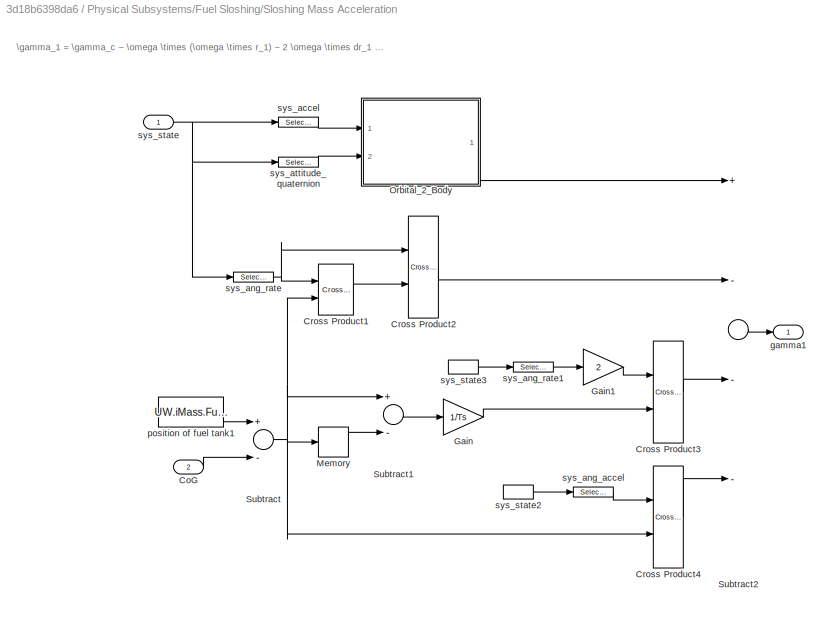
BLOCK [SubSystem] Physical Subsystems/Fuel Sloshing/Sloshing Mass Acceleration
  Ports = [2, 1]
  RequestExecContextInheritance = off
  Variant = off
BLOCK [Inport] Physical Subsystems/Fuel Sloshing/Sloshing Mass Acceleration/CoG
  IconDisplay = Port number
  Port = 2
BLOCK [Reference] Physical Subsystems/Fuel Sloshing/Sloshing Mass Acceleration/Cross Product1  REF=vrlib/Utilities/Cross Product
  Ports = [2, 1]
  SourceBlock = vrlib/Utilities/Cross Product
  SourceType = Cross Product
BLOCK [Reference] Physical Subsystems/Fuel Sloshing/Sloshing Mass Acceleration/Cross Product2  REF=vrlib/Utilities/Cross Product
  Ports = [2, 1]
  SourceBlock = vrlib/Utilities/Cross Product
  SourceType = Cross Product
BLOCK [Reference] Physical Subsystems/Fuel Sloshing/Sloshing Mass Acceleration/Cross Product3  REF=vrlib/Utilities/Cross Product
  Ports = [2, 1]
  SourceBlock = vrlib/Utilities/Cross Product
  SourceType = Cross Product
BLOCK [Reference] Physical Subsystems/Fuel Sloshing/Sloshing Mass Acceleration/Cross Product4  REF=vrlib/Utilities/Cross Product
  Ports = [2, 1]
  SourceBlock = vrlib/Utilities/Cross Product
  SourceType = Cross Product
BLOCK [Gain] Physical Subsystems/Fuel Sloshing/Sloshing Mass Acceleration/Gain
  Gain = 1/Ts
  OutDataTypeStr = Inherit: Inherit via internal rule
  ParamDataTypeStr = Inherit: Inherit via internal rule
  SaturateOnIntegerOverflow = off
BLOCK [Gain] Physical Subsystems/Fuel Sloshing/Sloshing Mass Acceleration/Gain1
  Gain = 2
  OutDataTypeStr = Inherit: Inherit via internal rule
  ParamDataTypeStr = Inherit: Inherit via internal rule
  SaturateOnIntegerOverflow = off
BLOCK [Memory] Physical Subsystems/Fuel Sloshing/Sloshing Mass Acceleration/Memory
  X0 = UW.iMass.Fuel_Tank_1
BLOCK [SubSystem] Physical Subsystems/Fuel Sloshing/Sloshing Mass Acceleration/Orbital_2_Body
  ErrorFcn = Stateflow.Translate.translate
  PermitHierarchicalResolution = ExplicitOnly
  Ports = [2, 1]
  RequestExecContextInheritance = off
  SFBlockType = MATLAB Function
  TreatAsAtomicUnit = on
  Variant = off
BLOCK [Demux] Physical Subsystems/Fuel Sloshing/Sloshing Mass Acceleration/Orbital_2_Body/ Demux 
  Outputs = 1
  Ports = [1, 1]
BLOCK [S-Function] Physical Subsystems/Fuel Sloshing/Sloshing Mass Acceleration/Orbital_2_Body/ SFunction 
  EnableBusSupport = off
  FunctionName = sf_sfun
  PortCounts = [2 2]
  Ports = [2, 2]
  SFunctionDeploymentMode = off
  Tag = Stateflow S-Function GUARD_Toolbox 22
BLOCK [Terminator] Physical Subsystems/Fuel Sloshing/Sloshing Mass Acceleration/Orbital_2_Body/ Terminator 
BLOCK [Inport] Physical Subsystems/Fuel Sloshing/Sloshing Mass Acceleration/Orbital_2_Body/q
  IconDisplay = Port number
  Port = 2
BLOCK [Outport] Physical Subsystems/Fuel Sloshing/Sloshing Mass Acceleration/Orbital_2_Body/r_b
  IconDisplay = Port number
BLOCK [Inport] Physical Subsystems/Fuel Sloshing/Sloshing Mass Acceleration/Orbital_2_Body/r_o
  IconDisplay = Port number
BLOCK [Sum] Physical Subsystems/Fuel Sloshing/Sloshing Mass Acceleration/Subtract
  InputSameDT = off
  Inputs = +-
  OutDataTypeStr = Inherit: Inherit via internal rule
  Ports = [2, 1]
  SaturateOnIntegerOverflow = off
BLOCK [Sum] Physical Subsystems/Fuel Sloshing/Sloshing Mass Acceleration/Subtract1
  InputSameDT = off
  Inputs = +-
  OutDataTypeStr = Inherit: Inherit via internal rule
  Ports = [2, 1]
  SaturateOnIntegerOverflow = off
BLOCK [Sum] Physical Subsystems/Fuel Sloshing/Sloshing Mass Acceleration/Subtract2
  InputSameDT = off
  Inputs = +---
  OutDataTypeStr = Inherit: Inherit via internal rule
  Ports = [4, 1]
  SaturateOnIntegerOverflow = off
BLOCK [Outport] Physical Subsystems/Fuel Sloshing/Sloshing Mass Acceleration/gamma1
  IconDisplay = Port number
BLOCK [Constant] Physical Subsystems/Fuel Sloshing/Sloshing Mass Acceleration/position of fuel tank1
  Value = UW.iMass.Fuel_Tank_1
BLOCK [Selector] Physical Subsystems/Fuel Sloshing/Sloshing Mass Acceleration/sys_accel
  IndexOptions = Index vector (dialog)
  Indices = [7 8 9]
  InputPortWidth = 19
  OutputSizes = 1
  Ports = [1, 1]
BLOCK [Selector] Physical Subsystems/Fuel Sloshing/Sloshing Mass Acceleration/sys_ang_accel
  IndexOptions = Index vector (dialog)
  Indices = [17 18 19]
  InputPortWidth = 19
  OutputSizes = 1
  Ports = [1, 1]
BLOCK [Selector] Physical Subsystems/Fuel Sloshing/Sloshing Mass Acceleration/sys_ang_rate
  IndexOptions = Index vector (dialog)
  Indices = [14 15 16]
  InputPortWidth = 19
  OutputSizes = 1
  Ports = [1, 1]
BLOCK [Selector] Physical Subsystems/Fuel Sloshing/Sloshing Mass Acceleration/sys_ang_rate1
  IndexOptions = Index vector (dialog)
  Indices = [14 15 16]
  InputPortWidth = 19
  OutputSizes = 1
  Ports = [1, 1]
BLOCK [Selector] Physical Subsystems/Fuel Sloshing/Sloshing Mass Acceleration/sys_attitude_quaternion
  IndexOptions = Index vector (dialog)
  Indices = [10 11 12 13]
  InputPortWidth = 19
  OutputSizes = 1
  Ports = [1, 1]
BLOCK [Inport] Physical Subsystems/Fuel Sloshing/Sloshing Mass Acceleration/sys_state
  IconDisplay = Port number
BLOCK [InportShadow] Physical Subsystems/Fuel Sloshing/Sloshing Mass Acceleration/sys_state2
  IconDisplay = Port number
BLOCK [InportShadow] Physical Subsystems/Fuel Sloshing/Sloshing Mass Acceleration/sys_state3
  IconDisplay = Port number
BLOCK [Sum] Physical Subsystems/Fuel Sloshing/Subtract
  InputSameDT = off
  Inputs = +-
  OutDataTypeStr = Inherit: Inherit via internal rule
  Ports = [2, 1]
  SaturateOnIntegerOverflow = off
BLOCK [Constant] Physical Subsystems/Fuel Sloshing/alpha_s
  Value = UW.iMass.alpha_s
BLOCK [Inport] Physical Subsystems/Fuel Sloshing/cons_fuel
  IconDisplay = Port number
  Port = 3
BLOCK [Constant] Physical Subsystems/Fuel Sloshing/number of fuel tanks
  Value = UW.iMass.n_tanks
BLOCK [Constant] Physical Subsystems/Fuel Sloshing/position of fuel tank1
  Value = UW.iMass.Fuel_Tank_1
BLOCK [Outport] Physical Subsystems/Fuel Sloshing/sloshing_force_and_torque
  IconDisplay = Port number
BLOCK [Selector] Physical Subsystems/Fuel Sloshing/sys_attitude_quaternion
  IndexOptions = Index vector (dialog)
  Indices = [10 11 12 13]
  InputPortWidth = 19
  OutputSizes = 1
  Ports = [1, 1]
BLOCK [Inport] Physical Subsystems/Fuel Sloshing/system_state
  IconDisplay = Port number
BLOCK [InportShadow] Physical Subsystems/Fuel Sloshing/system_state1
  IconDisplay = Port number
BLOCK [Constant] Physical Subsystems/Fuel Sloshing/total fuel in the tank
  Value = UW.iMass.m_fuel_T1
BLOCK [SubSystem] Physical Subsystems/Gravity Gradient
  Ports = [4, 1]
  RequestExecContextInheritance = off
  Variant = off
BLOCK [SubSystem] Physical Subsystems/Gravity Gradient/ECI to Body
  ErrorFcn = Stateflow.Translate.translate
  PermitHierarchicalResolution = ExplicitOnly
  Ports = [2, 1]
  RequestExecContextInheritance = off
  SFBlockType = MATLAB Function
  TreatAsAtomicUnit = on
  Variant = off
BLOCK [Demux] Physical Subsystems/Gravity Gradient/ECI to Body/ Demux 
  Outputs = 1
  Ports = [1, 1]
BLOCK [S-Function] Physical Subsystems/Gravity Gradient/ECI to Body/ SFunction 
  EnableBusSupport = off
  FunctionName = sf_sfun
  PortCounts = [2 2]
  Ports = [2, 2]
  SFunctionDeploymentMode = off
  Tag = Stateflow S-Function GUARD_Toolbox 2
BLOCK [Terminator] Physical Subsystems/Gravity Gradient/ECI to Body/ Terminator 
BLOCK [Inport] Physical Subsystems/Gravity Gradient/ECI to Body/q
  IconDisplay = Port number
  Port = 2
BLOCK [Inport] Physical Subsystems/Gravity Gradient/ECI to Body/vec_ECI
  IconDisplay = Port number
BLOCK [Outport] Physical Subsystems/Gravity Gradient/ECI to Body/vec_b
  IconDisplay = Port number
BLOCK [SubSystem] Physical Subsystems/Gravity Gradient/Gravity Gradient Torque
  ErrorFcn = Stateflow.Translate.translate
  PermitHierarchicalResolution = ExplicitOnly
  Ports = [4, 1]
  RequestExecContextInheritance = off
  SFBlockType = MATLAB Function
  TreatAsAtomicUnit = on
  Variant = off
BLOCK [Demux] Physical Subsystems/Gravity Gradient/Gravity Gradient Torque/ Demux 
  Outputs = 1
  Ports = [1, 1]
BLOCK [S-Function] Physical Subsystems/Gravity Gradient/Gravity Gradient Torque/ SFunction 
  EnableBusSupport = off
  FunctionName = sf_sfun
  PortCounts = [4 2]
  Ports = [4, 2]
  SFunctionDeploymentMode = off
  Tag = Stateflow S-Function GUARD_Toolbox 20
BLOCK [Terminator] Physical Subsystems/Gravity Gradient/Gravity Gradient Torque/ Terminator 
BLOCK [Inport] Physical Subsystems/Gravity Gradient/Gravity Gradient Torque/current_inertia
  IconDisplay = Port number
  Port = 4
BLOCK [Outport] Physical Subsystems/Gravity Gradient/Gravity Gradient Torque/ggt
  IconDisplay = Port number
BLOCK [Inport] Physical Subsystems/Gravity Gradient/Gravity Gradient Torque/gravity_body
  IconDisplay = Port number
BLOCK [Inport] Physical Subsystems/Gravity Gradient/Gravity Gradient Torque/mu
  IconDisplay = Port number
  Port = 3
BLOCK [Inport] Physical Subsystems/Gravity Gradient/Gravity Gradient Torque/sys_pos
  IconDisplay = Port number
  Port = 2
BLOCK [Outport] Physical Subsystems/Gravity Gradient/T_gg
  IconDisplay = Port number
BLOCK [Inport] Physical Subsystems/Gravity Gradient/attitude_quaternion
  IconDisplay = Port number
  Port = 4
BLOCK [Inport] Physical Subsystems/Gravity Gradient/current inertia
  IconDisplay = Port number
BLOCK [Constant] Physical Subsystems/Gravity Gradient/gravitaitonal parameter
  Value = UW.iPlanet.mu
BLOCK [Inport] Physical Subsystems/Gravity Gradient/gravity
  IconDisplay = Port number
  Port = 2
BLOCK [Inport] Physical Subsystems/Gravity Gradient/position
  IconDisplay = Port number
  Port = 3
BLOCK [SubSystem] Physical Subsystems/Inertia and CoM Evolution
  Ports = [1, 2]
  RequestExecContextInheritance = off
  Variant = off
BLOCK [Lookup_n-D] Physical Subsystems/Inertia and CoM Evolution/CoM  Lookup Table
  BreakpointsForDimension1 = UW.iMass.m_idx
  InternalRulePriority = Speed
  NumberOfTableDimensions = 1
  Ports = [1, 1]
  RndMeth = Simplest
  Table = UW.iMass.GoG_m
BLOCK [Lookup_n-D] Physical Subsystems/Inertia and CoM Evolution/I_xx Lookup Table
  BreakpointsForDimension1 = UW.iMass.m_idx
  InternalRulePriority = Speed
  NumberOfTableDimensions = 1
  Ports = [1, 1]
  RndMeth = Simplest
  Table = UW.iMass.I_xx_m
BLOCK [Lookup_n-D] Physical Subsystems/Inertia and CoM Evolution/I_yy  Lookup Table
  BreakpointsForDimension1 = UW.iMass.m_idx
  InternalRulePriority = Speed
  NumberOfTableDimensions = 1
  Ports = [1, 1]
  RndMeth = Simplest
  Table = UW.iMass.I_yy_m
BLOCK [Lookup_n-D] Physical Subsystems/Inertia and CoM Evolution/I_zz  Lookup Table
  BreakpointsForDimension1 = UW.iMass.m_idx
  InternalRulePriority = Speed
  NumberOfTableDimensions = 1
  Ports = [1, 1]
  RndMeth = Simplest
  Table = UW.iMass.I_zz_m
BLOCK [SubSystem] Physical Subsystems/Inertia and CoM Evolution/MATLAB Function
  ErrorFcn = Stateflow.Translate.translate
  PermitHierarchicalResolution = ExplicitOnly
  Ports = [1, 1]
  RequestExecContextInheritance = off
  SFBlockType = MATLAB Function
  TreatAsAtomicUnit = on
  Variant = off
BLOCK [Demux] Physical Subsystems/Inertia and CoM Evolution/MATLAB Function/ Demux 
  Outputs = 1
  Ports = [1, 1]
BLOCK [S-Function] Physical Subsystems/Inertia and CoM Evolution/MATLAB Function/ SFunction 
  EnableBusSupport = off
  FunctionName = sf_sfun
  PortCounts = [1 2]
  Ports = [1, 2]
  SFunctionDeploymentMode = off
  Tag = Stateflow S-Function GUARD_Toolbox 10
BLOCK [Terminator] Physical Subsystems/Inertia and CoM Evolution/MATLAB Function/ Terminator 
BLOCK [Inport] Physical Subsystems/Inertia and CoM Evolution/MATLAB Function/I_ii
  IconDisplay = Port number
BLOCK [Outport] Physical Subsystems/Inertia and CoM Evolution/MATLAB Function/current_inertia
  IconDisplay = Port number
BLOCK [Mux] Physical Subsystems/Inertia and CoM Evolution/Mux
  DisplayOption = bar
  Inputs = 3
  Ports = [3, 1]
BLOCK [Constant] Physical Subsystems/Inertia and CoM Evolution/Other CoG coordinates
  Value = [0;0]
BLOCK [Concatenate] Physical Subsystems/Inertia and CoM Evolution/Vector Concatenate
  Ports = [2, 1]
BLOCK [Outport] Physical Subsystems/Inertia and CoM Evolution/current_CoM
  IconDisplay = Port number
  Port = 2
BLOCK [Outport] Physical Subsystems/Inertia and CoM Evolution/current_inertia
  IconDisplay = Port number
BLOCK [Inport] Physical Subsystems/Inertia and CoM Evolution/current_mass
  IconDisplay = Port number
BLOCK [SubSystem] Physical Subsystems/LEO Gravity Accelerations
  ErrorFcn = Stateflow.Translate.translate
  PermitHierarchicalResolution = ExplicitOnly
  Ports = [3, 1]
  RequestExecContextInheritance = off
  SFBlockType = MATLAB Function
  TreatAsAtomicUnit = on
  Variant = off
BLOCK [Demux] Physical Subsystems/LEO Gravity Accelerations/ Demux 
  Outputs = 1
  Ports = [1, 1]
BLOCK [S-Function] Physical Subsystems/LEO Gravity Accelerations/ SFunction 
  EnableBusSupport = off
  FunctionName = sf_sfun
  PortCounts = [3 2]
  Ports = [3, 2]
  SFunctionDeploymentMode = off
  Tag = Stateflow S-Function GUARD_Toolbox 1
BLOCK [Terminator] Physical Subsystems/LEO Gravity Accelerations/ Terminator 
BLOCK [Inport] Physical Subsystems/LEO Gravity Accelerations/J_aux
  IconDisplay = Port number
  Port = 2
BLOCK [Outport] Physical Subsystems/LEO Gravity Accelerations/gravity
  IconDisplay = Port number
BLOCK [Inport] Physical Subsystems/LEO Gravity Accelerations/mu
  IconDisplay = Port number
BLOCK [Inport] Physical Subsystems/LEO Gravity Accelerations/sys_pos
  IconDisplay = Port number
  Port = 3
BLOCK [SubSystem] Physical Subsystems/Mass Evolution
  Ports = [2, 2]
  RequestExecContextInheritance = off
  Variant = off
BLOCK [Product] Physical Subsystems/Mass Evolution/Divide
  InputSameDT = off
  Inputs = */
  OutDataTypeStr = Inherit: Inherit via internal rule
  Ports = [2, 1]
  RndMeth = Floor
  SaturateOnIntegerOverflow = off
BLOCK [Constant] Physical Subsystems/Mass Evolution/Dry Mass
  Value = UW.iMass.m_dry
BLOCK [Inport] Physical Subsystems/Mass Evolution/F_prop
  IconDisplay = Port number
BLOCK [Inport] Physical Subsystems/Mass Evolution/Initial_mass
  IconDisplay = Port number
  Port = 2
BLOCK [Integrator] Physical Subsystems/Mass Evolution/Integrator1
  InitialConditionSource = external
  Ports = [2, 1]
BLOCK [Constant] Physical Subsystems/Mass Evolution/Specific impulse
  Value = -UW.iMass.g0*UW.iMass.Isp
BLOCK [Sum] Physical Subsystems/Mass Evolution/Sum
  InputSameDT = off
  Inputs = +-
  OutDataTypeStr = Inherit: Inherit via internal rule
  Ports = [2, 1]
  SaturateOnIntegerOverflow = off
BLOCK [SubSystem] Physical Subsystems/Mass Evolution/Thrust_Norm
  ErrorFcn = Stateflow.Translate.translate
  PermitHierarchicalResolution = ExplicitOnly
  Ports = [1, 1]
  RequestExecContextInheritance = off
  SFBlockType = MATLAB Function
  TreatAsAtomicUnit = on
  Variant = off
BLOCK [Demux] Physical Subsystems/Mass Evolution/Thrust_Norm/ Demux 
  Outputs = 1
  Ports = [1, 1]
BLOCK [S-Function] Physical Subsystems/Mass Evolution/Thrust_Norm/ SFunction 
  EnableBusSupport = off
  FunctionName = sf_sfun
  PortCounts = [1 2]
  Ports = [1, 2]
  SFunctionDeploymentMode = off
  Tag = Stateflow S-Function GUARD_Toolbox 3
BLOCK [Terminator] Physical Subsystems/Mass Evolution/Thrust_Norm/ Terminator 
BLOCK [Inport] Physical Subsystems/Mass Evolution/Thrust_Norm/F_prop
  IconDisplay = Port number
BLOCK [Outport] Physical Subsystems/Mass Evolution/Thrust_Norm/T_n
  IconDisplay = Port number
BLOCK [Outport] Physical Subsystems/Mass Evolution/cons_fuel
  IconDisplay = Port number
  Port = 2
BLOCK [Outport] Physical Subsystems/Mass Evolution/current_mass
  IconDisplay = Port number
BLOCK [SubSystem] Physical Subsystems/Mass and Inertia
  Ports = [2, 3]
  RequestExecContextInheritance = off
  Variant = off
BLOCK [Inport] Physical Subsystems/Mass and Inertia/F_prop
  IconDisplay = Port number
  Port = 2
BLOCK [Reference] Physical Subsystems/Mass and Inertia/Fuel Sloshing  REF=GUARD_Toolbox/Physical Subsystems/Fuel Sloshing
  Commented = on
  Ports = [3, 1]
  SourceBlock = GUARD_Toolbox/Physical Subsystems/Fuel Sloshing
  SourceType = Fuel Sloshing
BLOCK [Reference] Physical Subsystems/Mass and Inertia/Inertia and CoM Evolution  REF=GUARD_Toolbox/Physical Subsystems/Inertia and CoM Evolution
  Ports = [1, 2]
  SourceBlock = GUARD_Toolbox/Physical Subsystems/Inertia and CoM Evolution
  SourceType = Inertia and Center of Mass Evolution
BLOCK [Reference] Physical Subsystems/Mass and Inertia/Mass Evolution  REF=GUARD_Toolbox/Physical Subsystems/Mass Evolution
  Ports = [2, 2]
  SourceBlock = GUARD_Toolbox/Physical Subsystems/Mass Evolution
  SourceType = Mass Evolution
BLOCK [Outport] Physical Subsystems/Mass and Inertia/current_inertia
  IconDisplay = Port number
BLOCK [Outport] Physical Subsystems/Mass and Inertia/current_mass
  IconDisplay = Port number
  Port = 2
BLOCK [Constant] Physical Subsystems/Mass and Inertia/initial_mass
  Value = UW.iMass.m_wet
BLOCK [Outport] Physical Subsystems/Mass and Inertia/slosh_FT
  IconDisplay = Port number
  Port = 3
BLOCK [Inport] Physical Subsystems/Mass and Inertia/system_state
  IconDisplay = Port number
BLOCK [SubSystem] Physical Subsystems/Propulsion
  Ports = [1, 1]
  RequestExecContextInheritance = off
  Variant = off
BLOCK [Outport] Physical Subsystems/Propulsion/FT
  IconDisplay = Port number
BLOCK [Inport] Physical Subsystems/Propulsion/ctrl_cmd
  IconDisplay = Port number
BLOCK [SubSystem] Software Subsystems
  Ports = []
  RequestExecContextInheritance = off
  Variant = off
BLOCK [SubSystem] Software Subsystems/Control Allocation
  Ports = [1, 1]
  RequestExecContextInheritance = off
  Variant = off
BLOCK [Inport] Software Subsystems/Control Allocation/GNC_FT
  IconDisplay = Port number
BLOCK [Outport] Software Subsystems/Control Allocation/ctr_cmd
  IconDisplay = Port number
BLOCK [SubSystem] Software Subsystems/GNC
  Ports = [1, 1]
  RequestExecContextInheritance = off
  Variant = off
BLOCK [SubSystem] Software Subsystems/GNC/Feedback Controller
  Ports = [2, 1]
  RequestExecContextInheritance = off
  Variant = off
BLOCK [Outport] Software Subsystems/GNC/Feedback Controller/Out1
  IconDisplay = Port number
BLOCK [Inport] Software Subsystems/GNC/Feedback Controller/est_state
  IconDisplay = Port number
  Port = 2
BLOCK [Inport] Software Subsystems/GNC/Feedback Controller/guidance_cmd
  IconDisplay = Port number
BLOCK [Outport] Software Subsystems/GNC/GNC_FT
  IconDisplay = Port number
BLOCK [SubSystem] Software Subsystems/GNC/Guidance
  Ports = [1, 1]
  RequestExecContextInheritance = off
  Variant = off
BLOCK [Inport] Software Subsystems/GNC/Guidance/In1
  IconDisplay = Port number
BLOCK [Outport] Software Subsystems/GNC/Guidance/Out1
  IconDisplay = Port number
BLOCK [Inport] Software Subsystems/GNC/est_state
  IconDisplay = Port number
BLOCK [SubSystem] Software Subsystems/State Estimation
  Ports = [1, 1]
  RequestExecContextInheritance = off
  Variant = off
BLOCK [Outport] Software Subsystems/State Estimation/est_state
  IconDisplay = Port number
BLOCK [Inport] Software Subsystems/State Estimation/sens_state
  IconDisplay = Port number
BLOCK [SubSystem] Software Subsystems/UE4 OSC_UDP Interface
  Ports = [4]
  RequestExecContextInheritance = off
  Variant = off
BLOCK [Inport] Software Subsystems/UE4 OSC_UDP Interface/Euler_Angles
  IconDisplay = Port number
  Port = 2
BLOCK [Inport] Software Subsystems/UE4 OSC_UDP Interface/MV
  IconDisplay = Port number
  Port = 3
BLOCK [SubSystem] Software Subsystems/UE4 OSC_UDP Interface/OSC_data_convert
  ErrorFcn = Stateflow.Translate.translate
  PermitHierarchicalResolution = ExplicitOnly
  Ports = [1, 1]
  RequestExecContextInheritance = off
  SFBlockType = MATLAB Function
  TreatAsAtomicUnit = on
  Variant = off
BLOCK [Demux] Software Subsystems/UE4 OSC_UDP Interface/OSC_data_convert/ Demux 
  Outputs = 1
  Ports = [1, 1]
BLOCK [S-Function] Software Subsystems/UE4 OSC_UDP Interface/OSC_data_convert/ SFunction 
  EnableBusSupport = on
  FunctionName = sf_sfun
  PortCounts = [1 2]
  Ports = [1, 2]
  SFunctionDeploymentMode = off
  Tag = Stateflow S-Function GUARD_Toolbox 9
BLOCK [Terminator] Software Subsystems/UE4 OSC_UDP Interface/OSC_data_convert/ Terminator 
BLOCK [Outport] Software Subsystems/UE4 OSC_UDP Interface/OSC_data_convert/pos_OSC
  IconDisplay = Port number
BLOCK [Inport] Software Subsystems/UE4 OSC_UDP Interface/OSC_data_convert/pos_sim
  IconDisplay = Port number
BLOCK [SubSystem] Software Subsystems/UE4 OSC_UDP Interface/OSC_path_generate
  ErrorFcn = Stateflow.Translate.translate
  PermitHierarchicalResolution = ExplicitOnly
  Ports = [0, 1]
  RequestExecContextInheritance = off
  SFBlockType = MATLAB Function
  TreatAsAtomicUnit = on
  Variant = off
BLOCK [Demux] Software Subsystems/UE4 OSC_UDP Interface/OSC_path_generate/ Demux 
  Outputs = 1
  Ports = [1, 1]
BLOCK [Ground] Software Subsystems/UE4 OSC_UDP Interface/OSC_path_generate/ Ground 
BLOCK [S-Function] Software Subsystems/UE4 OSC_UDP Interface/OSC_path_generate/ SFunction 
  EnableBusSupport = on
  FunctionName = sf_sfun
  PortCounts = [1 2]
  Ports = [1, 2]
  SFunctionDeploymentMode = off
  Tag = Stateflow S-Function GUARD_Toolbox 14
BLOCK [Terminator] Software Subsystems/UE4 OSC_UDP Interface/OSC_path_generate/ Terminator 
BLOCK [Outport] Software Subsystems/UE4 OSC_UDP Interface/OSC_path_generate/path_OSC
  IconDisplay = Port number
BLOCK [SubSystem] Software Subsystems/UE4 OSC_UDP Interface/OSC_types_generate
  ErrorFcn = Stateflow.Translate.translate
  PermitHierarchicalResolution = ExplicitOnly
  Ports = [1, 1]
  RequestExecContextInheritance = off
  SFBlockType = MATLAB Function
  TreatAsAtomicUnit = on
  Variant = off
BLOCK [Demux] Software Subsystems/UE4 OSC_UDP Interface/OSC_types_generate/ Demux 
  Outputs = 1
  Ports = [1, 1]
BLOCK [S-Function] Software Subsystems/UE4 OSC_UDP Interface/OSC_types_generate/ SFunction 
  EnableBusSupport = on
  FunctionName = sf_sfun
  PortCounts = [1 2]
  Ports = [1, 2]
  SFunctionDeploymentMode = off
  Tag = Stateflow S-Function GUARD_Toolbox 15
BLOCK [Terminator] Software Subsystems/UE4 OSC_UDP Interface/OSC_types_generate/ Terminator 
BLOCK [Inport] Software Subsystems/UE4 OSC_UDP Interface/OSC_types_generate/pos_sim
  IconDisplay = Port number
BLOCK [Outport] Software Subsystems/UE4 OSC_UDP Interface/OSC_types_generate/types_OSC
  IconDisplay = Port number
BLOCK [Inport] Software Subsystems/UE4 OSC_UDP Interface/Position
  IconDisplay = Port number
BLOCK [Sum] Software Subsystems/UE4 OSC_UDP Interface/Sum
  IconShape = round
  InputSameDT = off
  Inputs = ++|
  OutDataTypeStr = Inherit: Inherit via internal rule
  Ports = [2, 1]
  SaturateOnIntegerOverflow = off
BLOCK [Reference] Software Subsystems/UE4 OSC_UDP Interface/UDP Send  REF=instrumentlib/UDP Send
  Ports = [1]
  SourceBlock = instrumentlib/UDP Send
  SourceType = UDP Send
BLOCK [Constant] Software Subsystems/UE4 OSC_UDP Interface/UE4 target position, angles, MV, vel
  Value = [-380970.0 730504.0625 -98169.460938 0 0 0 0 0]
  VectorParams1D = off
BLOCK [Concatenate] Software Subsystems/UE4 OSC_UDP Interface/Vector Concatenate
  NumInputs = 3
  Ports = [3, 1]
BLOCK [Inport] Software Subsystems/UE4 OSC_UDP Interface/Velocity
  IconDisplay = Port number
  Port = 4
BLOCK [SubSystem] Software Subsystems/UE4 OSC_UDP Interface/coordinates transformation
  ErrorFcn = Stateflow.Translate.translate
  PermitHierarchicalResolution = ExplicitOnly
  Ports = [4, 1]
  RequestExecContextInheritance = off
  SFBlockType = MATLAB Function
  TreatAsAtomicUnit = on
  Variant = off
BLOCK [Demux] Software Subsystems/UE4 OSC_UDP Interface/coordinates transformation/ Demux 
  Outputs = 1
  Ports = [1, 1]
BLOCK [S-Function] Software Subsystems/UE4 OSC_UDP Interface/coordinates transformation/ SFunction 
  EnableBusSupport = on
  FunctionName = sf_sfun
  PortCounts = [4 2]
  Ports = [4, 2]
  SFunctionDeploymentMode = off
  Tag = Stateflow S-Function GUARD_Toolbox 16
BLOCK [Terminator] Software Subsystems/UE4 OSC_UDP Interface/coordinates transformation/ Terminator 
BLOCK [Inport] Software Subsystems/UE4 OSC_UDP Interface/coordinates transformation/Euler_angles
  IconDisplay = Port number
  Port = 2
BLOCK [Inport] Software Subsystems/UE4 OSC_UDP Interface/coordinates transformation/MV
  IconDisplay = Port number
  Port = 3
BLOCK [Outport] Software Subsystems/UE4 OSC_UDP Interface/coordinates transformation/coord_UE4
  IconDisplay = Port number
BLOCK [Inport] Software Subsystems/UE4 OSC_UDP Interface/coordinates transformation/pos_PCI
  IconDisplay = Port number
BLOCK [Inport] Software Subsystems/UE4 OSC_UDP Interface/coordinates transformation/vel_PCI
  IconDisplay = Port number
  Port = 4
ANNOTATION (root): Blue
ANNOTATION (root): Constant
ANNOTATION (root): Dark Green
ANNOTATION (root): Frame Conversion
ANNOTATION (root): Green
ANNOTATION (root): Input
ANNOTATION (root): Legend
ANNOTATION (root): Light Blue
ANNOTATION (root): Mathematical Operation
ANNOTATION (root): Orange
ANNOTATION (root): Output
ANNOTATION (root): Physical Subsystem
ANNOTATION (root): Red
ANNOTATION (root): Software Subsystem
ANNOTATION (root): Yellow
ANNOTATION Physical Subsystems/Aerodynamics: Input Dimension Atmosphere Density 1 Velocity (inertial) 3 Attitude Quaternion 4
ANNOTATION Physical Subsystems/Aerodynamics: Output Dimension Aerodynamic Forces (inertial) 3 Aerodynamic Torques (body) 3
ANNOTATION Physical Subsystems/Aerodynamics: F_{aero} = - 1/2 \rho A C_d V^2
ANNOTATION Physical Subsystems/Aerodynamics: T_{aero} = F_{aero} \times CoP
ANNOTATION Physical Subsystems/Atmosphere (PW exp density): \rho = e^{ - ( h - {h_0} ) / H }
ANNOTATION Physical Subsystems/Equations of Motion (6-DoF Rigid Body, cont): Output Dimension Position 3 Velocity 3 Acceleration 3 Attitude Quaternion 4 Angular Rate 3 Angular Acceleration 3
ANNOTATION Physical Subsystems/Equations of Motion (6-DoF Rigid Body, cont): Input Dimension Forces and Torques 6 Gravity 3 Current Mass 1 Current Inertia 3*3 Matrix Initial Conditions 13
ANNOTATION Physical Subsystems/Equations of Motion (6-DoF Rigid Body, cont)/Rotational Dynamics/compute_omega_dot: 3*3 I matrix
ANNOTATION Physical Subsystems/Equations of Motion (6-DoF Rigid Body, cont)/Rotational Dynamics/compute_omega_dot: I omega
ANNOTATION Physical Subsystems/Equations of Motion (6-DoF Rigid Body, cont)/Rotational Dynamics/compute_omega_dot: omega
ANNOTATION Physical Subsystems/Fuel Sloshing/Sloshing Mass Acceleration: \gamma_1 = \gamma_c − \omega \times (\omega \times r_1) − 2 \omega \times dr_1 − d\omega \times r1
ANNOTATION Physical Subsystems/Gravity Gradient: Input Dimension Current Inertia 3*3 Position (inertial) 3 Attitude Quaternion 4
ANNOTATION Physical Subsystems/Gravity Gradient: Output Dimension Gravity Gradient Torque (body) 3
ANNOTATION Physical Subsystems/Gravity Gradient: T_{gg} = 3 \mu / r^3 \bf{o_3} \times I o_3
ANNOTATION Physical Subsystems/Mass Evolution: dm = -||T|| / (g_0*I_{SP})
ANNOTATION Physical Subsystems/Mass and Inertia: Input Dimension Propulsion system Forces 3 system state 19
ANNOTATION Physical Subsystems/Mass and Inertia: Output Dimension Sloshing Forces and Torques 3 Current Mass 1 Current inertia Matrix 3*3
ANNOTATION Physical Subsystems/Propulsion: Output Dimension Attained Forces and Torques 6
ANNOTATION Software Subsystems/State Estimation: Input Dimension Sensed System State ?
ANNOTATION Software Subsystems/State Estimation: Output Dimension Estimated System State ?
LINE Physical Subsystems/Aerodynamics/Body_2_ECI:1 -> Physical Subsystems/Aerodynamics/Mux:1
LINE Physical Subsystems/Aerodynamics/Cross Product:1 -> Physical Subsystems/Aerodynamics/Mux:2
LINE Physical Subsystems/Aerodynamics/Cross sectional Area Matrix:1 -> Physical Subsystems/Aerodynamics/Product2:2
LINE Physical Subsystems/Aerodynamics/Drag Coefficient:1 -> Physical Subsystems/Aerodynamics/Product:3
NET Physical Subsystems/Aerodynamics/ECI_2_Body:1 -> Physical Subsystems/Aerodynamics/Product1:1, Physical Subsystems/Aerodynamics/Product1:2
NET Physical Subsystems/Aerodynamics/Gain:1 -> Physical Subsystems/Aerodynamics/Cross Product:1, Physical Subsystems/Aerodynamics/Reshape:1
LINE Physical Subsystems/Aerodynamics/Mux:1 -> Physical Subsystems/Aerodynamics/FT_Aero:1
LINE Physical Subsystems/Aerodynamics/Product1:1 -> Physical Subsystems/Aerodynamics/Product:2
LINE Physical Subsystems/Aerodynamics/Product2:1 -> Physical Subsystems/Aerodynamics/Gain:1
LINE Physical Subsystems/Aerodynamics/Product:1 -> Physical Subsystems/Aerodynamics/Product2:1
LINE Physical Subsystems/Aerodynamics/Reshape:1 -> Physical Subsystems/Aerodynamics/Body_2_ECI:1
LINE Physical Subsystems/Aerodynamics/atm_density:1 -> Physical Subsystems/Aerodynamics/Product:1
LINE Physical Subsystems/Aerodynamics/attitude quaternion1:1 -> Physical Subsystems/Aerodynamics/Body_2_ECI:2
LINE Physical Subsystems/Aerodynamics/attitude quaternion:1 -> Physical Subsystems/Aerodynamics/ECI_2_Body:2
LINE Physical Subsystems/Aerodynamics/center of pressure:1 -> Physical Subsystems/Aerodynamics/Cross Product:2
LINE Physical Subsystems/Aerodynamics/velocity:1 -> Physical Subsystems/Aerodynamics/ECI_2_Body:1
NET Physical Subsystems/Atmosphere (PW exp density)/Altitude (oblate spheroid):1 -> Physical Subsystems/Atmosphere (PW exp density)/H Lookup Table1:1, Physical Subsystems/Atmosphere (PW exp density)/H Lookup Table:1, Physical Subsystems/Atmosphere (PW exp density)/Sum:1, Physical Subsystems/Atmosphere (PW exp density)/rho_0 Lookup Table:1
LINE Physical Subsystems/Atmosphere (PW exp density)/Gain:1 -> Physical Subsystems/Atmosphere (PW exp density)/Product:1
LINE Physical Subsystems/Atmosphere (PW exp density)/H Lookup Table1:1 -> Physical Subsystems/Atmosphere (PW exp density)/Sum:2
LINE Physical Subsystems/Atmosphere (PW exp density)/H Lookup Table:1 -> Physical Subsystems/Atmosphere (PW exp density)/Product:2
LINE Physical Subsystems/Atmosphere (PW exp density)/Math Function:1 -> Physical Subsystems/Atmosphere (PW exp density)/Product1:2
LINE Physical Subsystems/Atmosphere (PW exp density)/Product1:1 -> Physical Subsystems/Atmosphere (PW exp density)/atm_density:1
LINE Physical Subsystems/Atmosphere (PW exp density)/Product:1 -> Physical Subsystems/Atmosphere (PW exp density)/Math Function:1
LINE Physical Subsystems/Atmosphere (PW exp density)/Sum:1 -> Physical Subsystems/Atmosphere (PW exp density)/Gain:1
LINE Physical Subsystems/Atmosphere (PW exp density)/position:1 -> Physical Subsystems/Atmosphere (PW exp density)/Altitude (oblate spheroid):1
LINE Physical Subsystems/Atmosphere (PW exp density)/rho_0 Lookup Table:1 -> Physical Subsystems/Atmosphere (PW exp density)/Product1:1
LINE Physical Subsystems/Equations of Motion (6-DoF Rigid Body, cont)/Mux1:1 -> Physical Subsystems/Equations of Motion (6-DoF Rigid Body, cont)/Mux2:2
LINE Physical Subsystems/Equations of Motion (6-DoF Rigid Body, cont)/Mux2:1 -> Physical Subsystems/Equations of Motion (6-DoF Rigid Body, cont)/System_State:1
LINE Physical Subsystems/Equations of Motion (6-DoF Rigid Body, cont)/Mux:1 -> Physical Subsystems/Equations of Motion (6-DoF Rigid Body, cont)/Mux2:1
LINE Physical Subsystems/Equations of Motion (6-DoF Rigid Body, cont)/Product:1 -> Physical Subsystems/Equations of Motion (6-DoF Rigid Body, cont)/Sum:2
NET Physical Subsystems/Equations of Motion (6-DoF Rigid Body, cont)/Rotational Dynamics/Integrator1:1 -> Physical Subsystems/Equations of Motion (6-DoF Rigid Body, cont)/Rotational Dynamics/angular_rate:1, Physical Subsystems/Equations of Motion (6-DoF Rigid Body, cont)/Rotational Dynamics/compute_omega_dot:2, Physical Subsystems/Equations of Motion (6-DoF Rigid Body, cont)/Rotational Dynamics/compute_q_dot:2
LINE Physical Subsystems/Equations of Motion (6-DoF Rigid Body, cont)/Rotational Dynamics/Integrator2:1 -> Physical Subsystems/Equations of Motion (6-DoF Rigid Body, cont)/Rotational Dynamics/normalize_quaternion:1
LINE Physical Subsystems/Equations of Motion (6-DoF Rigid Body, cont)/Rotational Dynamics/Torques:1 -> Physical Subsystems/Equations of Motion (6-DoF Rigid Body, cont)/Rotational Dynamics/compute_omega_dot:1
LINE Physical Subsystems/Equations of Motion (6-DoF Rigid Body, cont)/Rotational Dynamics/compute_omega_dot/-inv(Inertia)*omega x Inertia*omega + T:1 -> Physical Subsystems/Equations of Motion (6-DoF Rigid Body, cont)/Rotational Dynamics/compute_omega_dot/omega_dot:1
LINE Physical Subsystems/Equations of Motion (6-DoF Rigid Body, cont)/Rotational Dynamics/compute_omega_dot/Inertia*omega:1 -> Physical Subsystems/Equations of Motion (6-DoF Rigid Body, cont)/Rotational Dynamics/compute_omega_dot/cross_product:2
LINE Physical Subsystems/Equations of Motion (6-DoF Rigid Body, cont)/Rotational Dynamics/compute_omega_dot/Sum:1 -> Physical Subsystems/Equations of Motion (6-DoF Rigid Body, cont)/Rotational Dynamics/compute_omega_dot/-inv(Inertia)*omega x Inertia*omega + T:2
LINE Physical Subsystems/Equations of Motion (6-DoF Rigid Body, cont)/Rotational Dynamics/compute_omega_dot/Torques:1 -> Physical Subsystems/Equations of Motion (6-DoF Rigid Body, cont)/Rotational Dynamics/compute_omega_dot/Sum:1
NET Physical Subsystems/Equations of Motion (6-DoF Rigid Body, cont)/Rotational Dynamics/compute_omega_dot/angular_rate:1 -> Physical Subsystems/Equations of Motion (6-DoF Rigid Body, cont)/Rotational Dynamics/compute_omega_dot/Inertia*omega:2, Physical Subsystems/Equations of Motion (6-DoF Rigid Body, cont)/Rotational Dynamics/compute_omega_dot/cross_product:1
LINE Physical Subsystems/Equations of Motion (6-DoF Rigid Body, cont)/Rotational Dynamics/compute_omega_dot/cross_product:1 -> Physical Subsystems/Equations of Motion (6-DoF Rigid Body, cont)/Rotational Dynamics/compute_omega_dot/Sum:2
NET Physical Subsystems/Equations of Motion (6-DoF Rigid Body, cont)/Rotational Dynamics/compute_omega_dot/current inertia matrix:1 -> Physical Subsystems/Equations of Motion (6-DoF Rigid Body, cont)/Rotational Dynamics/compute_omega_dot/Inertia*omega:1, Physical Subsystems/Equations of Motion (6-DoF Rigid Body, cont)/Rotational Dynamics/compute_omega_dot/inv(Inertia):1
LINE Physical Subsystems/Equations of Motion (6-DoF Rigid Body, cont)/Rotational Dynamics/compute_omega_dot/inv(Inertia):1 -> Physical Subsystems/Equations of Motion (6-DoF Rigid Body, cont)/Rotational Dynamics/compute_omega_dot/-inv(Inertia)*omega x Inertia*omega + T:1
NET Physical Subsystems/Equations of Motion (6-DoF Rigid Body, cont)/Rotational Dynamics/compute_omega_dot:1 -> Physical Subsystems/Equations of Motion (6-DoF Rigid Body, cont)/Rotational Dynamics/Integrator1:1, Physical Subsystems/Equations of Motion (6-DoF Rigid Body, cont)/Rotational Dynamics/angular_accel:1
LINE Physical Subsystems/Equations of Motion (6-DoF Rigid Body, cont)/Rotational Dynamics/compute_q_dot:1 -> Physical Subsystems/Equations of Motion (6-DoF Rigid Body, cont)/Rotational Dynamics/Integrator2:1
LINE Physical Subsystems/Equations of Motion (6-DoF Rigid Body, cont)/Rotational Dynamics/current inertia matrix:1 -> Physical Subsystems/Equations of Motion (6-DoF Rigid Body, cont)/Rotational Dynamics/compute_omega_dot:3
LINE Physical Subsystems/Equations of Motion (6-DoF Rigid Body, cont)/Rotational Dynamics/initial_angular_rates:1 -> Physical Subsystems/Equations of Motion (6-DoF Rigid Body, cont)/Rotational Dynamics/Integrator1:2
LINE Physical Subsystems/Equations of Motion (6-DoF Rigid Body, cont)/Rotational Dynamics/initial_attitude_quaternion:1 -> Physical Subsystems/Equations of Motion (6-DoF Rigid Body, cont)/Rotational Dynamics/Integrator2:2
NET Physical Subsystems/Equations of Motion (6-DoF Rigid Body, cont)/Rotational Dynamics/normalize_quaternion:1 -> Physical Subsystems/Equations of Motion (6-DoF Rigid Body, cont)/Rotational Dynamics/attitude_quaternion:1, Physical Subsystems/Equations of Motion (6-DoF Rigid Body, cont)/Rotational Dynamics/compute_q_dot:1
LINE Physical Subsystems/Equations of Motion (6-DoF Rigid Body, cont)/Rotational Dynamics:1 -> Physical Subsystems/Equations of Motion (6-DoF Rigid Body, cont)/Mux1:1
LINE Physical Subsystems/Equations of Motion (6-DoF Rigid Body, cont)/Rotational Dynamics:2 -> Physical Subsystems/Equations of Motion (6-DoF Rigid Body, cont)/Mux1:2
LINE Physical Subsystems/Equations of Motion (6-DoF Rigid Body, cont)/Rotational Dynamics:3 -> Physical Subsystems/Equations of Motion (6-DoF Rigid Body, cont)/Mux1:3
LINE Physical Subsystems/Equations of Motion (6-DoF Rigid Body, cont)/Sum:1 -> Physical Subsystems/Equations of Motion (6-DoF Rigid Body, cont)/Translational Dynamics:1
LINE Physical Subsystems/Equations of Motion (6-DoF Rigid Body, cont)/Translational Dynamics/Integrator1:1 -> Physical Subsystems/Equations of Motion (6-DoF Rigid Body, cont)/Translational Dynamics/position:1
NET Physical Subsystems/Equations of Motion (6-DoF Rigid Body, cont)/Translational Dynamics/Integrator:1 -> Physical Subsystems/Equations of Motion (6-DoF Rigid Body, cont)/Translational Dynamics/Integrator1:1, Physical Subsystems/Equations of Motion (6-DoF Rigid Body, cont)/Translational Dynamics/velocity:1
NET Physical Subsystems/Equations of Motion (6-DoF Rigid Body, cont)/Translational Dynamics/accelerations:1 -> Physical Subsystems/Equations of Motion (6-DoF Rigid Body, cont)/Translational Dynamics/Integrator:1, Physical Subsystems/Equations of Motion (6-DoF Rigid Body, cont)/Translational Dynamics/acceleration:1
LINE Physical Subsystems/Equations of Motion (6-DoF Rigid Body, cont)/Translational Dynamics/initial_position:1 -> Physical Subsystems/Equations of Motion (6-DoF Rigid Body, cont)/Translational Dynamics/Integrator1:2
LINE Physical Subsystems/Equations of Motion (6-DoF Rigid Body, cont)/Translational Dynamics/initial_velocity:1 -> Physical Subsystems/Equations of Motion (6-DoF Rigid Body, cont)/Translational Dynamics/Integrator:2
LINE Physical Subsystems/Equations of Motion (6-DoF Rigid Body, cont)/Translational Dynamics:1 -> Physical Subsystems/Equations of Motion (6-DoF Rigid Body, cont)/Mux:1
LINE Physical Subsystems/Equations of Motion (6-DoF Rigid Body, cont)/Translational Dynamics:2 -> Physical Subsystems/Equations of Motion (6-DoF Rigid Body, cont)/Mux:2
LINE Physical Subsystems/Equations of Motion (6-DoF Rigid Body, cont)/Translational Dynamics:3 -> Physical Subsystems/Equations of Motion (6-DoF Rigid Body, cont)/Mux:3
LINE Physical Subsystems/Equations of Motion (6-DoF Rigid Body, cont)/current mass:1 -> Physical Subsystems/Equations of Motion (6-DoF Rigid Body, cont)/Product:2
LINE Physical Subsystems/Equations of Motion (6-DoF Rigid Body, cont)/current_inertia:1 -> Physical Subsystems/Equations of Motion (6-DoF Rigid Body, cont)/Rotational Dynamics:4
LINE Physical Subsystems/Equations of Motion (6-DoF Rigid Body, cont)/forces:1 -> Physical Subsystems/Equations of Motion (6-DoF Rigid Body, cont)/Product:1
NET Physical Subsystems/Equations of Motion (6-DoF Rigid Body, cont)/forces_and_torques:1 -> Physical Subsystems/Equations of Motion (6-DoF Rigid Body, cont)/forces:1, Physical Subsystems/Equations of Motion (6-DoF Rigid Body, cont)/torques:1
LINE Physical Subsystems/Equations of Motion (6-DoF Rigid Body, cont)/gravity:1 -> Physical Subsystems/Equations of Motion (6-DoF Rigid Body, cont)/Sum:1
LINE Physical Subsystems/Equations of Motion (6-DoF Rigid Body, cont)/initial_angular_rates:1 -> Physical Subsystems/Equations of Motion (6-DoF Rigid Body, cont)/Rotational Dynamics:3
LINE Physical Subsystems/Equations of Motion (6-DoF Rigid Body, cont)/initial_attitude quaternion:1 -> Physical Subsystems/Equations of Motion (6-DoF Rigid Body, cont)/Rotational Dynamics:2
NET Physical Subsystems/Equations of Motion (6-DoF Rigid Body, cont)/initial_condirtions1:1 -> Physical Subsystems/Equations of Motion (6-DoF Rigid Body, cont)/initial_angular_rates:1, Physical Subsystems/Equations of Motion (6-DoF Rigid Body, cont)/initial_attitude quaternion:1
NET Physical Subsystems/Equations of Motion (6-DoF Rigid Body, cont)/initial_condirtions:1 -> Physical Subsystems/Equations of Motion (6-DoF Rigid Body, cont)/initial_position:1, Physical Subsystems/Equations of Motion (6-DoF Rigid Body, cont)/initial_velocity:1
LINE Physical Subsystems/Equations of Motion (6-DoF Rigid Body, cont)/initial_position:1 -> Physical Subsystems/Equations of Motion (6-DoF Rigid Body, cont)/Translational Dynamics:2
LINE Physical Subsystems/Equations of Motion (6-DoF Rigid Body, cont)/initial_velocity:1 -> Physical Subsystems/Equations of Motion (6-DoF Rigid Body, cont)/Translational Dynamics:3
LINE Physical Subsystems/Equations of Motion (6-DoF Rigid Body, cont)/torques:1 -> Physical Subsystems/Equations of Motion (6-DoF Rigid Body, cont)/Rotational Dynamics:1
LINE Physical Subsystems/Fuel Sloshing/Body_2_ECI:1 -> Physical Subsystems/Fuel Sloshing/Mux:1
LINE Physical Subsystems/Fuel Sloshing/CoG1:1 -> Physical Subsystems/Fuel Sloshing/Subtract:2
LINE Physical Subsystems/Fuel Sloshing/CoG:1 -> Physical Subsystems/Fuel Sloshing/Sloshing Mass Acceleration:2
LINE Physical Subsystems/Fuel Sloshing/Cross Product:1 -> Physical Subsystems/Fuel Sloshing/Mux:2
LINE Physical Subsystems/Fuel Sloshing/MATLAB Function:1 -> Physical Subsystems/Fuel Sloshing/Mass - Spring - Damper Model:2
NET Physical Subsystems/Fuel Sloshing/Mass - Spring - Damper Model/Discrete-Time Integrator1:1 -> Physical Subsystems/Fuel Sloshing/Mass - Spring - Damper Model/spring stiffness1:1, Physical Subsystems/Fuel Sloshing/Mass - Spring - Damper Model/spring stiffness:1
NET Physical Subsystems/Fuel Sloshing/Mass - Spring - Damper Model/Discrete-Time Integrator2:1 -> Physical Subsystems/Fuel Sloshing/Mass - Spring - Damper Model/Discrete-Time Integrator3:1, Physical Subsystems/Fuel Sloshing/Mass - Spring - Damper Model/damping2:1, Physical Subsystems/Fuel Sloshing/Mass - Spring - Damper Model/damping3:1
NET Physical Subsystems/Fuel Sloshing/Mass - Spring - Damper Model/Discrete-Time Integrator3:1 -> Physical Subsystems/Fuel Sloshing/Mass - Spring - Damper Model/spring stiffness2:1, Physical Subsystems/Fuel Sloshing/Mass - Spring - Damper Model/spring stiffness3:1
NET Physical Subsystems/Fuel Sloshing/Mass - Spring - Damper Model/Discrete-Time Integrator4:1 -> Physical Subsystems/Fuel Sloshing/Mass - Spring - Damper Model/Discrete-Time Integrator5:1, Physical Subsystems/Fuel Sloshing/Mass - Spring - Damper Model/damping4:1, Physical Subsystems/Fuel Sloshing/Mass - Spring - Damper Model/damping5:1
NET Physical Subsystems/Fuel Sloshing/Mass - Spring - Damper Model/Discrete-Time Integrator5:1 -> Physical Subsystems/Fuel Sloshing/Mass - Spring - Damper Model/spring stiffness4:1, Physical Subsystems/Fuel Sloshing/Mass - Spring - Damper Model/spring stiffness5:1
NET Physical Subsystems/Fuel Sloshing/Mass - Spring - Damper Model/Discrete-Time Integrator:1 -> Physical Subsystems/Fuel Sloshing/Mass - Spring - Damper Model/Discrete-Time Integrator1:1, Physical Subsystems/Fuel Sloshing/Mass - Spring - Damper Model/damping1:1, Physical Subsystems/Fuel Sloshing/Mass - Spring - Damper Model/damping:1
LINE Physical Subsystems/Fuel Sloshing/Mass - Spring - Damper Model/Divide1:1 -> Physical Subsystems/Fuel Sloshing/Mass - Spring - Damper Model/Discrete-Time Integrator2:1
LINE Physical Subsystems/Fuel Sloshing/Mass - Spring - Damper Model/Divide2:1 -> Physical Subsystems/Fuel Sloshing/Mass - Spring - Damper Model/Discrete-Time Integrator4:1
LINE Physical Subsystems/Fuel Sloshing/Mass - Spring - Damper Model/Divide:1 -> Physical Subsystems/Fuel Sloshing/Mass - Spring - Damper Model/Discrete-Time Integrator:1
LINE Physical Subsystems/Fuel Sloshing/Mass - Spring - Damper Model/Mux:1 -> Physical Subsystems/Fuel Sloshing/Mass - Spring - Damper Model/sloshing_force:1
LINE Physical Subsystems/Fuel Sloshing/Mass - Spring - Damper Model/Sum1:1 -> Physical Subsystems/Fuel Sloshing/Mass - Spring - Damper Model/Mux:1
LINE Physical Subsystems/Fuel Sloshing/Mass - Spring - Damper Model/Sum2:1 -> Physical Subsystems/Fuel Sloshing/Mass - Spring - Damper Model/Divide1:1
LINE Physical Subsystems/Fuel Sloshing/Mass - Spring - Damper Model/Sum3:1 -> Physical Subsystems/Fuel Sloshing/Mass - Spring - Damper Model/Mux:2
LINE Physical Subsystems/Fuel Sloshing/Mass - Spring - Damper Model/Sum4:1 -> Physical Subsystems/Fuel Sloshing/Mass - Spring - Damper Model/Divide2:1
LINE Physical Subsystems/Fuel Sloshing/Mass - Spring - Damper Model/Sum5:1 -> Physical Subsystems/Fuel Sloshing/Mass - Spring - Damper Model/Mux:3
LINE Physical Subsystems/Fuel Sloshing/Mass - Spring - Damper Model/Sum:1 -> Physical Subsystems/Fuel Sloshing/Mass - Spring - Damper Model/Divide:1
LINE Physical Subsystems/Fuel Sloshing/Mass - Spring - Damper Model/damping1:1 -> Physical Subsystems/Fuel Sloshing/Mass - Spring - Damper Model/Sum1:2
LINE Physical Subsystems/Fuel Sloshing/Mass - Spring - Damper Model/damping2:1 -> Physical Subsystems/Fuel Sloshing/Mass - Spring - Damper Model/Sum2:1
LINE Physical Subsystems/Fuel Sloshing/Mass - Spring - Damper Model/damping3:1 -> Physical Subsystems/Fuel Sloshing/Mass - Spring - Damper Model/Sum3:2
LINE Physical Subsystems/Fuel Sloshing/Mass - Spring - Damper Model/damping4:1 -> Physical Subsystems/Fuel Sloshing/Mass - Spring - Damper Model/Sum4:1
LINE Physical Subsystems/Fuel Sloshing/Mass - Spring - Damper Model/damping5:1 -> Physical Subsystems/Fuel Sloshing/Mass - Spring - Damper Model/Sum5:2
LINE Physical Subsystems/Fuel Sloshing/Mass - Spring - Damper Model/damping:1 -> Physical Subsystems/Fuel Sloshing/Mass - Spring - Damper Model/Sum:1
NET Physical Subsystems/Fuel Sloshing/Mass - Spring - Damper Model/gamma1:1 -> Physical Subsystems/Fuel Sloshing/Mass - Spring - Damper Model/m1_accel_x:1, Physical Subsystems/Fuel Sloshing/Mass - Spring - Damper Model/m1_accel_y:1, Physical Subsystems/Fuel Sloshing/Mass - Spring - Damper Model/m1_accel_z:1
NET Physical Subsystems/Fuel Sloshing/Mass - Spring - Damper Model/m1:1 -> Physical Subsystems/Fuel Sloshing/Mass - Spring - Damper Model/Divide1:2, Physical Subsystems/Fuel Sloshing/Mass - Spring - Damper Model/Divide2:2, Physical Subsystems/Fuel Sloshing/Mass - Spring - Damper Model/Divide:2
LINE Physical Subsystems/Fuel Sloshing/Mass - Spring - Damper Model/m1_accel_x:1 -> Physical Subsystems/Fuel Sloshing/Mass - Spring - Damper Model/Sum:3
LINE Physical Subsystems/Fuel Sloshing/Mass - Spring - Damper Model/m1_accel_y:1 -> Physical Subsystems/Fuel Sloshing/Mass - Spring - Damper Model/Sum2:3
LINE Physical Subsystems/Fuel Sloshing/Mass - Spring - Damper Model/m1_accel_z:1 -> Physical Subsystems/Fuel Sloshing/Mass - Spring - Damper Model/Sum4:3
LINE Physical Subsystems/Fuel Sloshing/Mass - Spring - Damper Model/spring stiffness1:1 -> Physical Subsystems/Fuel Sloshing/Mass - Spring - Damper Model/Sum1:1
LINE Physical Subsystems/Fuel Sloshing/Mass - Spring - Damper Model/spring stiffness2:1 -> Physical Subsystems/Fuel Sloshing/Mass - Spring - Damper Model/Sum2:2
LINE Physical Subsystems/Fuel Sloshing/Mass - Spring - Damper Model/spring stiffness3:1 -> Physical Subsystems/Fuel Sloshing/Mass - Spring - Damper Model/Sum3:1
LINE Physical Subsystems/Fuel Sloshing/Mass - Spring - Damper Model/spring stiffness4:1 -> Physical Subsystems/Fuel Sloshing/Mass - Spring - Damper Model/Sum4:2
LINE Physical Subsystems/Fuel Sloshing/Mass - Spring - Damper Model/spring stiffness5:1 -> Physical Subsystems/Fuel Sloshing/Mass - Spring - Damper Model/Sum5:1
LINE Physical Subsystems/Fuel Sloshing/Mass - Spring - Damper Model/spring stiffness:1 -> Physical Subsystems/Fuel Sloshing/Mass - Spring - Damper Model/Sum:2
NET Physical Subsystems/Fuel Sloshing/Mass - Spring - Damper Model:1 -> Physical Subsystems/Fuel Sloshing/Body_2_ECI:1, Physical Subsystems/Fuel Sloshing/Cross Product:1
LINE Physical Subsystems/Fuel Sloshing/Mux:1 -> Physical Subsystems/Fuel Sloshing/sloshing_force_and_torque:1
LINE Physical Subsystems/Fuel Sloshing/Sloshing Mass Acceleration/CoG:1 -> Physical Subsystems/Fuel Sloshing/Sloshing Mass Acceleration/Subtract:2
LINE Physical Subsystems/Fuel Sloshing/Sloshing Mass Acceleration/Cross Product1:1 -> Physical Subsystems/Fuel Sloshing/Sloshing Mass Acceleration/Cross Product2:2
LINE Physical Subsystems/Fuel Sloshing/Sloshing Mass Acceleration/Cross Product2:1 -> Physical Subsystems/Fuel Sloshing/Sloshing Mass Acceleration/Subtract2:2
LINE Physical Subsystems/Fuel Sloshing/Sloshing Mass Acceleration/Cross Product3:1 -> Physical Subsystems/Fuel Sloshing/Sloshing Mass Acceleration/Subtract2:3
LINE Physical Subsystems/Fuel Sloshing/Sloshing Mass Acceleration/Cross Product4:1 -> Physical Subsystems/Fuel Sloshing/Sloshing Mass Acceleration/Subtract2:4
LINE Physical Subsystems/Fuel Sloshing/Sloshing Mass Acceleration/Gain1:1 -> Physical Subsystems/Fuel Sloshing/Sloshing Mass Acceleration/Cross Product3:1
LINE Physical Subsystems/Fuel Sloshing/Sloshing Mass Acceleration/Gain:1 -> Physical Subsystems/Fuel Sloshing/Sloshing Mass Acceleration/Cross Product3:2
LINE Physical Subsystems/Fuel Sloshing/Sloshing Mass Acceleration/Memory:1 -> Physical Subsystems/Fuel Sloshing/Sloshing Mass Acceleration/Subtract1:2
LINE Physical Subsystems/Fuel Sloshing/Sloshing Mass Acceleration/Orbital_2_Body:1 -> Physical Subsystems/Fuel Sloshing/Sloshing Mass Acceleration/Subtract2:1
LINE Physical Subsystems/Fuel Sloshing/Sloshing Mass Acceleration/Subtract1:1 -> Physical Subsystems/Fuel Sloshing/Sloshing Mass Acceleration/Gain:1
LINE Physical Subsystems/Fuel Sloshing/Sloshing Mass Acceleration/Subtract2:1 -> Physical Subsystems/Fuel Sloshing/Sloshing Mass Acceleration/gamma1:1
NET Physical Subsystems/Fuel Sloshing/Sloshing Mass Acceleration/Subtract:1 -> Physical Subsystems/Fuel Sloshing/Sloshing Mass Acceleration/Cross Product1:2, Physical Subsystems/Fuel Sloshing/Sloshing Mass Acceleration/Cross Product4:2, Physical Subsystems/Fuel Sloshing/Sloshing Mass Acceleration/Memory:1, Physical Subsystems/Fuel Sloshing/Sloshing Mass Acceleration/Subtract1:1
LINE Physical Subsystems/Fuel Sloshing/Sloshing Mass Acceleration/position of fuel tank1:1 -> Physical Subsystems/Fuel Sloshing/Sloshing Mass Acceleration/Subtract:1
LINE Physical Subsystems/Fuel Sloshing/Sloshing Mass Acceleration/sys_accel:1 -> Physical Subsystems/Fuel Sloshing/Sloshing Mass Acceleration/Orbital_2_Body:1
LINE Physical Subsystems/Fuel Sloshing/Sloshing Mass Acceleration/sys_ang_accel:1 -> Physical Subsystems/Fuel Sloshing/Sloshing Mass Acceleration/Cross Product4:1
LINE Physical Subsystems/Fuel Sloshing/Sloshing Mass Acceleration/sys_ang_rate1:1 -> Physical Subsystems/Fuel Sloshing/Sloshing Mass Acceleration/Gain1:1
NET Physical Subsystems/Fuel Sloshing/Sloshing Mass Acceleration/sys_ang_rate:1 -> Physical Subsystems/Fuel Sloshing/Sloshing Mass Acceleration/Cross Product1:1, Physical Subsystems/Fuel Sloshing/Sloshing Mass Acceleration/Cross Product2:1
LINE Physical Subsystems/Fuel Sloshing/Sloshing Mass Acceleration/sys_attitude_quaternion:1 -> Physical Subsystems/Fuel Sloshing/Sloshing Mass Acceleration/Orbital_2_Body:2
LINE Physical Subsystems/Fuel Sloshing/Sloshing Mass Acceleration/sys_state2:1 -> Physical Subsystems/Fuel Sloshing/Sloshing Mass Acceleration/sys_ang_accel:1
LINE Physical Subsystems/Fuel Sloshing/Sloshing Mass Acceleration/sys_state3:1 -> Physical Subsystems/Fuel Sloshing/Sloshing Mass Acceleration/sys_ang_rate1:1
NET Physical Subsystems/Fuel Sloshing/Sloshing Mass Acceleration/sys_state:1 -> Physical Subsystems/Fuel Sloshing/Sloshing Mass Acceleration/sys_accel:1, Physical Subsystems/Fuel Sloshing/Sloshing Mass Acceleration/sys_ang_rate:1, Physical Subsystems/Fuel Sloshing/Sloshing Mass Acceleration/sys_attitude_quaternion:1
LINE Physical Subsystems/Fuel Sloshing/Sloshing Mass Acceleration:1 -> Physical Subsystems/Fuel Sloshing/Mass - Spring - Damper Model:1
LINE Physical Subsystems/Fuel Sloshing/Subtract:1 -> Physical Subsystems/Fuel Sloshing/Cross Product:2
LINE Physical Subsystems/Fuel Sloshing/alpha_s:1 -> Physical Subsystems/Fuel Sloshing/MATLAB Function:2
LINE Physical Subsystems/Fuel Sloshing/cons_fuel:1 -> Physical Subsystems/Fuel Sloshing/MATLAB Function:1
LINE Physical Subsystems/Fuel Sloshing/number of fuel tanks:1 -> Physical Subsystems/Fuel Sloshing/MATLAB Function:4
LINE Physical Subsystems/Fuel Sloshing/position of fuel tank1:1 -> Physical Subsystems/Fuel Sloshing/Subtract:1
LINE Physical Subsystems/Fuel Sloshing/sys_attitude_quaternion:1 -> Physical Subsystems/Fuel Sloshing/Body_2_ECI:2
LINE Physical Subsystems/Fuel Sloshing/system_state1:1 -> Physical Subsystems/Fuel Sloshing/sys_attitude_quaternion:1
LINE Physical Subsystems/Fuel Sloshing/system_state:1 -> Physical Subsystems/Fuel Sloshing/Sloshing Mass Acceleration:1
LINE Physical Subsystems/Fuel Sloshing/total fuel in the tank:1 -> Physical Subsystems/Fuel Sloshing/MATLAB Function:3
LINE Physical Subsystems/Gravity Gradient/ECI to Body:1 -> Physical Subsystems/Gravity Gradient/Gravity Gradient Torque:1
LINE Physical Subsystems/Gravity Gradient/Gravity Gradient Torque:1 -> Physical Subsystems/Gravity Gradient/T_gg:1
LINE Physical Subsystems/Gravity Gradient/attitude_quaternion:1 -> Physical Subsystems/Gravity Gradient/ECI to Body:2
LINE Physical Subsystems/Gravity Gradient/current inertia:1 -> Physical Subsystems/Gravity Gradient/Gravity Gradient Torque:4
LINE Physical Subsystems/Gravity Gradient/gravitaitonal parameter:1 -> Physical Subsystems/Gravity Gradient/Gravity Gradient Torque:3
LINE Physical Subsystems/Gravity Gradient/gravity:1 -> Physical Subsystems/Gravity Gradient/ECI to Body:1
LINE Physical Subsystems/Gravity Gradient/position:1 -> Physical Subsystems/Gravity Gradient/Gravity Gradient Torque:2
LINE Physical Subsystems/Inertia and CoM Evolution/CoM  Lookup Table:1 -> Physical Subsystems/Inertia and CoM Evolution/Vector Concatenate:1
LINE Physical Subsystems/Inertia and CoM Evolution/I_xx Lookup Table:1 -> Physical Subsystems/Inertia and CoM Evolution/Mux:1
LINE Physical Subsystems/Inertia and CoM Evolution/I_yy  Lookup Table:1 -> Physical Subsystems/Inertia and CoM Evolution/Mux:2
LINE Physical Subsystems/Inertia and CoM Evolution/I_zz  Lookup Table:1 -> Physical Subsystems/Inertia and CoM Evolution/Mux:3
LINE Physical Subsystems/Inertia and CoM Evolution/MATLAB Function:1 -> Physical Subsystems/Inertia and CoM Evolution/current_inertia:1
LINE Physical Subsystems/Inertia and CoM Evolution/Mux:1 -> Physical Subsystems/Inertia and CoM Evolution/MATLAB Function:1
LINE Physical Subsystems/Inertia and CoM Evolution/Other CoG coordinates:1 -> Physical Subsystems/Inertia and CoM Evolution/Vector Concatenate:2
LINE Physical Subsystems/Inertia and CoM Evolution/Vector Concatenate:1 -> Physical Subsystems/Inertia and CoM Evolution/current_CoM:1
NET Physical Subsystems/Inertia and CoM Evolution/current_mass:1 -> Physical Subsystems/Inertia and CoM Evolution/CoM  Lookup Table:1, Physical Subsystems/Inertia and CoM Evolution/I_xx Lookup Table:1, Physical Subsystems/Inertia and CoM Evolution/I_yy  Lookup Table:1, Physical Subsystems/Inertia and CoM Evolution/I_zz  Lookup Table:1
LINE Physical Subsystems/Mass Evolution/Divide:1 -> Physical Subsystems/Mass Evolution/Integrator1:1
LINE Physical Subsystems/Mass Evolution/Dry Mass:1 -> Physical Subsystems/Mass Evolution/Sum:2
LINE Physical Subsystems/Mass Evolution/F_prop:1 -> Physical Subsystems/Mass Evolution/Thrust_Norm:1
LINE Physical Subsystems/Mass Evolution/Initial_mass:1 -> Physical Subsystems/Mass Evolution/Integrator1:2
NET Physical Subsystems/Mass Evolution/Integrator1:1 -> Physical Subsystems/Mass Evolution/Sum:1, Physical Subsystems/Mass Evolution/current_mass:1
LINE Physical Subsystems/Mass Evolution/Specific impulse:1 -> Physical Subsystems/Mass Evolution/Divide:2
LINE Physical Subsystems/Mass Evolution/Sum:1 -> Physical Subsystems/Mass Evolution/cons_fuel:1
LINE Physical Subsystems/Mass Evolution/Thrust_Norm:1 -> Physical Subsystems/Mass Evolution/Divide:1
LINE Physical Subsystems/Mass and Inertia/F_prop:1 -> Physical Subsystems/Mass and Inertia/Mass Evolution:1
LINE Physical Subsystems/Mass and Inertia/Fuel Sloshing:1 -> Physical Subsystems/Mass and Inertia/slosh_FT:1
LINE Physical Subsystems/Mass and Inertia/Inertia and CoM Evolution:1 -> Physical Subsystems/Mass and Inertia/current_inertia:1
LINE Physical Subsystems/Mass and Inertia/Inertia and CoM Evolution:2 -> Physical Subsystems/Mass and Inertia/Fuel Sloshing:2
NET Physical Subsystems/Mass and Inertia/Mass Evolution:1 -> Physical Subsystems/Mass and Inertia/Inertia and CoM Evolution:1, Physical Subsystems/Mass and Inertia/current_mass:1
LINE Physical Subsystems/Mass and Inertia/Mass Evolution:2 -> Physical Subsystems/Mass and Inertia/Fuel Sloshing:3
LINE Physical Subsystems/Mass and Inertia/initial_mass:1 -> Physical Subsystems/Mass and Inertia/Mass Evolution:2
LINE Physical Subsystems/Mass and Inertia/system_state:1 -> Physical Subsystems/Mass and Inertia/Fuel Sloshing:1
LINE Physical Subsystems/Propulsion/ctrl_cmd:1 -> Physical Subsystems/Propulsion/FT:1
LINE Software Subsystems/Control Allocation/GNC_FT:1 -> Software Subsystems/Control Allocation/ctr_cmd:1
LINE Software Subsystems/GNC/Feedback Controller:1 -> Software Subsystems/GNC/GNC_FT:1
LINE Software Subsystems/GNC/Guidance:1 -> Software Subsystems/GNC/Feedback Controller:1
NET Software Subsystems/GNC/est_state:1 -> Software Subsystems/GNC/Feedback Controller:2, Software Subsystems/GNC/Guidance:1
LINE Software Subsystems/State Estimation/sens_state:1 -> Software Subsystems/State Estimation/est_state:1
LINE Software Subsystems/UE4 OSC_UDP Interface/Euler_Angles:1 -> Software Subsystems/UE4 OSC_UDP Interface/coordinates transformation:2
LINE Software Subsystems/UE4 OSC_UDP Interface/MV:1 -> Software Subsystems/UE4 OSC_UDP Interface/coordinates transformation:3
LINE Software Subsystems/UE4 OSC_UDP Interface/OSC_data_convert:1 -> Software Subsystems/UE4 OSC_UDP Interface/Vector Concatenate:3
LINE Software Subsystems/UE4 OSC_UDP Interface/OSC_path_generate:1 -> Software Subsystems/UE4 OSC_UDP Interface/Vector Concatenate:1
LINE Software Subsystems/UE4 OSC_UDP Interface/OSC_types_generate:1 -> Software Subsystems/UE4 OSC_UDP Interface/Vector Concatenate:2
LINE Software Subsystems/UE4 OSC_UDP Interface/Position:1 -> Software Subsystems/UE4 OSC_UDP Interface/coordinates transformation:1
LINE Software Subsystems/UE4 OSC_UDP Interface/Sum:1 -> Software Subsystems/UE4 OSC_UDP Interface/OSC_data_convert:1
LINE Software Subsystems/UE4 OSC_UDP Interface/UE4 target position, angles, MV, vel:1 -> Software Subsystems/UE4 OSC_UDP Interface/Sum:2
LINE Software Subsystems/UE4 OSC_UDP Interface/Vector Concatenate:1 -> Software Subsystems/UE4 OSC_UDP Interface/UDP Send:1
LINE Software Subsystems/UE4 OSC_UDP Interface/Velocity:1 -> Software Subsystems/UE4 OSC_UDP Interface/coordinates transformation:4
NET Software Subsystems/UE4 OSC_UDP Interface/coordinates transformation:1 -> Software Subsystems/UE4 OSC_UDP Interface/OSC_types_generate:1, Software Subsystems/UE4 OSC_UDP Interface/Sum:1
note: NET lines group one-source signal fan-out (src -> all destinations, sorted); 1:1 wires keep LINE
CHART Physical Subsystems/LEO Gravity Accelerations states=1 transitions=1
  STATE_LABEL 'eML_blk_kernel()'
  STATE_LABEL "SCRIPT:\nfunction gravity = gravity_acc(mu,J_aux,sys_pos)\n%#codegen\n\n% ECI frame\nX = sys_pos(1);\nY = sys_pos(2);\nZ = sys_pos(3);\n\n% offline zonal harmonics terms\nJ2_aux = J_aux(1);\nJ3_aux = J_aux(2);\n% Spacecraft distance from the planet's center\nr = sqrt(X^2 + Y^2 + Z^2);\n\n% spherical Earth;\nkep_acc = mu/r^3;\n\n% J2 perturbation\na = J2_aux/(r^7);\nb = 5*Z^2;\nJ2_pert_XY = (b - r^2)*[X;Y];\nJ2_pert_Z =...<+1069ch>"
CHART Physical Subsystems/Gravity Gradient/ECI to Body states=1 transitions=1
  STATE_LABEL 'eML_blk_kernel()'
  STATE_LABEL 'SCRIPT:\nfunction  vec_b = ECI_to_body(vec_ECI,q)\n%#codegen\n\n% Rotate a vector from the orbital frame to the body frame \n% C_bo = Quaternion rotation matrix\n% vec_b = Body frame vector\n% vec_ECI = Earth Fixed Inertial frame vector\n% q   = Attitude quaternion\nq1=q(1);\nq2=q(2);\nq3=q(3);\nq4=q(4);\n\nC_b_ECI = [ -2*q2^2 - 2*q3^2 + 1,  2*q1*q2 + 2*q3*q4,    2*q1*q3 - 2*q2*q4;\n          2*q1*q2 - 2*q3*q4, ...<+149ch>'  <repeated x3 — deduplicated; at blocks: ECI to Body, ECI_2_Body>
CHART Physical Subsystems/Mass Evolution/Thrust_Norm states=1 transitions=1
  STATE_LABEL 'eML_blk_kernel()'
  STATE_LABEL 'SCRIPT:\nfunction T_n = T_norm(F_prop)\n%#codegen\n\nT_n=sqrt(F_prop(1)^2 + F_prop(2)^2 + F_prop(3)^2);\n'
CHART Physical Subsystems/Aerodynamics/Body_2_ECI states=1 transitions=1
  STATE_LABEL 'eML_blk_kernel()'
  STATE_LABEL 'SCRIPT:\nfunction  vec_ECI = body_to_ECI(vec_b,q)\n%#codegen\n\n% Rotate a vector from the orbital frame to the body frame \n% C_bo = Quaternion rotation matrix\n% vec_b = Body frame vector\n% vec_ECI = Earth Fixed Inertial frame vector\n% q   = Attitude quaternion\nq1=q(1);\nq2=q(2);\nq3=q(3);\nq4=q(4);\n\nC_b_ECI = [ -2*q2^2 - 2*q3^2 + 1,  2*q1*q2 + 2*q3*q4,    2*q1*q3 - 2*q2*q4;\n          2*q1*q2 - 2*q3*q4, ...<+150ch>'  <repeated x3 — deduplicated; at blocks: Body_2_ECI, Body to ECI>
CHART Physical Subsystems/Aerodynamics/ECI_2_Body states=1 transitions=1
  STATE_LABEL 'eML_blk_kernel()'
CHART Physical Subsystems/Atmosphere (PW exp density)/Altitude (oblate spheroid) states=1 transitions=1
  STATE_LABEL 'eML_blk_kernel()'
  STATE_LABEL "SCRIPT:\nfunction alt = altitude(sys_pos)\nr = norm3(sys_pos); % distance from the center of the Earth\nr_n = sys_pos./r; % normalized position vector\n\n% declination and altitude [m] above oblate spheroid\ndec = asin(r_n(3));\nalt_m = UW.iPlanet.r_E * (r/UW.iPlanet.r_E - (1 - UW.iPlanet.f)/(sqrt(1 - UW.iPlanet.f*(2 - UW.iPlanet.f)*(cos(dec))^2)));\n\nalt = alt_m/1000; % distance from the planet's surface...<+106ch>"
CHART Physical Subsystems/Equations of Motion (6-DoF Rigid Body, cont)/Rotational Dynamics/compute_q_dot states=1 transitions=1
  STATE_LABEL 'eML_blk_kernel()'
  STATE_LABEL 'SCRIPT:\nfunction q_dot = q_rate(q,omega)\n%#codegen\n\nwx=omega(1);\nwy=omega(2);\nwz=omega(3);\n\nW=[ 0   wz -wy wx;\n   -wz  0   wx wy;\n    wy -wx  0  wz;\n   -wx -wy -wz 0 ];\n\nq_dot=.5*W*q; %unit quaternion rate'
CHART Software Subsystems/UE4 OSC_UDP Interface/OSC_data_convert states=1 transitions=1
  STATE_LABEL 'eML_blk_kernel()'
  STATE_LABEL "SCRIPT:\nfunction  pos_OSC = OSC_data(pos_sim)\n%#codegen\nn_in=length(pos_sim);\npos_OSC=uint8(zeros(1,(n_in*4)));\n\npos_OSC=typecast(swapbytes(single(pos_sim)),'uint8');"
CHART Physical Subsystems/Inertia and CoM Evolution/MATLAB Function states=1 transitions=1
  STATE_LABEL 'eML_blk_kernel()'
  STATE_LABEL 'SCRIPT:\nfunction current_inertia = Diag_Matrix(I_ii)\n%#codegen\n\ncurrent_inertia = [I_ii(1) 0       0;\n                   0       I_ii(1) 0;\n                   0       0       I_ii(1)];'
CHART Physical Subsystems/Equations of Motion (6-DoF Rigid Body, cont)/Rotational Dynamics/normalize_quaternion states=1 transitions=1
  STATE_LABEL 'eML_blk_kernel()'
  STATE_LABEL 'SCRIPT:\nfunction q_n = q_norm(q)\n%#codegen\n\nqN=sqrt(q(1)^2 + q(2)^2 + q(3)^2 + q(4)^2);\nq_n=q/qN;'
CHART Software Subsystems/UE4 OSC_UDP Interface/OSC_path_generate states=1 transitions=1
  STATE_LABEL 'eML_blk_kernel()'
  STATE_LABEL "SCRIPT:\nfunction  path_OSC = OSC_obj_path\n%#codegen\naddress='rocket';\npath=uint8(address);\n% retrives number of input data elements\n% n_in=length(path);\nfront_slash = 47;\nfour_byte_packet=zeros(1,4);\n% format type string\npath_to_mod=[front_slash path four_byte_packet];\n% adjust length\nlength_path_to_mod=length(path_to_mod);\nfinal_path_str=path_to_mod(1:length_path_to_mod-mod(length_path_to_mod,4))...<+53ch>"
CHART Software Subsystems/UE4 OSC_UDP Interface/OSC_types_generate states=1 transitions=1
  STATE_LABEL 'eML_blk_kernel()'
  STATE_LABEL 'SCRIPT:\nfunction  types_OSC = OSC_types(pos_sim)\n%#codegen\n% retrives number of input data elements\nn_in=length(pos_sim);\n% generate types string (float = 102)\ntypes=102*ones(1,n_in);\n% comma character = 44\ncomma = 44;\nfour_byte_packet=zeros(1,4);\n% format type string\ntypes_to_mod=[comma types four_byte_packet];\n% adjust length\nlength_types_to_mod=length(types_to_mod);\nfinal_types_str=types_to_mod...<+105ch>'
CHART Software Subsystems/UE4 OSC_UDP Interface/coordinates transformation states=1 transitions=1
  STATE_LABEL 'eML_blk_kernel()'
  STATE_LABEL 'SCRIPT:\nfunction  coord_UE4 = coor_trans(pos_PCI, Euler_angles, MV, vel_PCI)\n%#codegen\nVn=norm(vel_PCI);\ncoord_UE4=[100*[pos_PCI(3) pos_PCI(2) pos_PCI(1)] 180/pi*[Euler_angles(3) Euler_angles(2) Euler_angles(1)] MV(4) Vn];\n% coord_UE4=[100*[pos_PCI(2) -pos_PCI(3) pos_PCI(1)] 180/pi*[Euler_angles(2) -Euler_angles(3) Euler_angles(1)] MV(4)];'
CHART Physical Subsystems/Fuel Sloshing/Body_2_ECI states=1 transitions=1
  STATE_LABEL 'eML_blk_kernel()'
CHART Physical Subsystems/Gravity Gradient/Gravity Gradient Torque states=1 transitions=1
  STATE_LABEL 'eML_blk_kernel()'
  STATE_LABEL 'SCRIPT:\n% According to "Spacecraft Attitude Dynamics Hughes 1986", assuming the\n% Earth as a perfect rigid sphere with radially simmetric mass \n% distribution, the Gravity Gradient Torque can be computed as\n% $3 \\frac{mu}{r^3} \\cdot g_b \\times I g_b$ where $\\mu$ is the\n% Earth\'s gravitational constant, r is the distance of the spacecraft from\n% the center of the Earth, $g_b$ is the direction of th...<+634ch>'
CHART Physical Subsystems/Fuel Sloshing/MATLAB Function states=1 transitions=1
  STATE_LABEL 'eML_blk_kernel()'
  STATE_LABEL 'SCRIPT:\nfunction  m1 = sloshing_mass(cons_fuel,alpha_s,m_fuel_tank,n_tanks)\n%#codegen\n\n% Fuel tank filling ratio\ncurrent_m_fuel_tank = cons_fuel/n_tanks;\ntau = current_m_fuel_tank/m_fuel_tank;\n\nlambda = tau*(4*alpha_s-1) + tau^2 * (2 - 4*alpha_s);\n\nm1 = (1 - lambda)*m_Fuel;'
CHART Physical Subsystems/Fuel Sloshing/Sloshing Mass Acceleration/Orbital_2_Body states=1 transitions=1
  STATE_LABEL 'eML_blk_kernel()'
  STATE_LABEL 'SCRIPT:\nfunction  r_b = orbital_to_body(r_o,q)\n%#codegen\n\n% Rotate a vector from the orbital frame to the body frame \n% C_bo = Quaternion rotation matrix\n% r_b = Body frame vector\n% r_o = Orbital frame vector\n% q   = Attitude quaternion\nq1=q(1);\nq2=q(2);\nq3=q(3);\nq4=q(4);\n\nC_bo = [ -2*q2^2 - 2*q3^2 + 1,  2*q1*q2 + 2*q3*q4,    2*q1*q3 - 2*q2*q4;\n          2*q1*q2 - 2*q3*q4,   -2*q1^2 - 2*q3^2 + 1, ...<+116ch>'
CHART Axes Transformations/Body to ECI states=1 transitions=1
  STATE_LABEL 'eML_blk_kernel()'
CHART Axes Transformations/ECI to Body states=1 transitions=1
  STATE_LABEL 'eML_blk_kernel()'
CHART Axes Transformations/From ECEF to ECI states=1 transitions=1
  STATE_LABEL 'eML_blk_kernel()'
  STATE_LABEL "SCRIPT:\n%% Approximate transformation from ECI coordinates to ECEF\n%\n% This code does not take in account for small variations in Earth's\n% rotation\n%\n% INPUTS\n% t_vec = Time Vector including:\n% year % yyyy\n% month \n% day  \n% hour % 24h\n% minute\n% second\n% \n% vec_ECI = x,y,z [m]\n%\n% OUTPUTS\n% vec_ECEF [m]\n%\nfunction vec_ECI = ECEF_to_ECI(t_vec, vec_ECEF)\n% Extract time components\nyear   = t_vec(1)...<+538ch>"
CHART Axes Transformations/From ECEF to LLA states=1 transitions=1
  STATE_LABEL 'eML_blk_kernel()'
  STATE_LABEL 'SCRIPT:\n%% Exact transformation from ECEF coordinates to LLA\n%\n% Zhu method from : "Conversio of Earth-Centered Earth-Fixed coordinates to\n% Geodetic Coordinates." IEEE Transcations on Aerospace and Electronic Systems, \n% Vol.30, No. 3 July 1994.\n%\n% INPUTS\n% t_vec = Time Vector including:\n% year % yyyy\n% month \n% day  \n% hour % 24h\n% minute\n% second\n% \n% vec_ECEF = [X_ECEF; Y_ECEF; Z_ECEF] [m]\n%\n...<+918ch>'
CHART Axes Transformations/From ECI to ECEF states=1 transitions=1
  STATE_LABEL 'eML_blk_kernel()'
  STATE_LABEL "SCRIPT:\n%% Approximate transformation from ECI coordinates to ECEF\n%\n% This code does not take in account for small variations in Earth's\n% rotation\n%\n% INPUTS\n% t_vec = Time Vector including:\n% year % yyyy\n% month \n% day  \n% hour % 24h\n% minute\n% second\n% \n% vec_ECI = x,y,z [m]\n%\n% OUTPUTS\n% vec_ECEF [m]\n%\nfunction vec_ECEF = ECI_to_ECEF(t_vec, vec_ECI)\n% Extract time components\nyear   = t_vec(1)...<+535ch>"
CHART Axes Transformations/From ECI to LLA states=1 transitions=1
  STATE_LABEL 'eML_blk_kernel()'
  STATE_LABEL "SCRIPT:\n%% Approximate transformation from ECI coordinates to LLA\n% where LLA stands for latitude, longitude, and altitude.\n%\n% This code does not take in account for small variations in Earth's\n% rotation\n%\n% INPUTS\n% t_vec = Time Vector including:\n% year % yyyy\n% month \n% day  \n% hour % 24h\n% minute\n% second\n% \n% vec_ECI = x,y,z [m]\n%\n% OUTPUTS\n% lat = latitude [rad]\n% lon = latitude [rad]\n% alt...<+1112ch>"
CHART Axes Transformations/From LLA to ECEF states=1 transitions=1
  STATE_LABEL 'eML_blk_kernel()'
  STATE_LABEL 'SCRIPT:\n%% Transformation from LLA coordinates to ECEF\n%\n%\n% INPUTS\n% LLA:\n% lat  = geodetic latitude [rad] (positive North) \n% lon = geodetic longitude [rad] (measured east from the Greenwich meridian)\n% alt = altitude [m] (normal to the ellipsod)\n% \n%\n% OUTPUTS\n% vec_ECEF = [X_ECEF;Y_ECEF;Z_ECEF] [m]\n%\nfunction vec_ECEF = LLA_to_ECEF(LLA)\n\nlat = LLA(1);\nlon = LLA(2);\nalt = LLA(3);\n\n\nR = UW.iPlan...<+204ch>'
CHART Axes Transformations/From LVLH to ECI states=1 transitions=1
  STATE_LABEL 'eML_blk_kernel()'
  STATE_LABEL 'SCRIPT:\nfunction vec_ECI = LVLH2ECI(pos_ECI,vel_ECI,vec_LVLH)\n%#codegen\n% This block computes the transformation between the LVLH frame to the ECI \n% frame. The LVLH frame rotates with the orbit and it is always aligned\n% such that the X axis is in the local vertical (‘radial’), hence pointing\n% outwards, the Z axis is in the direction of the orbit normal, and the \n% Y axis forms a right-handed co...<+730ch>'
